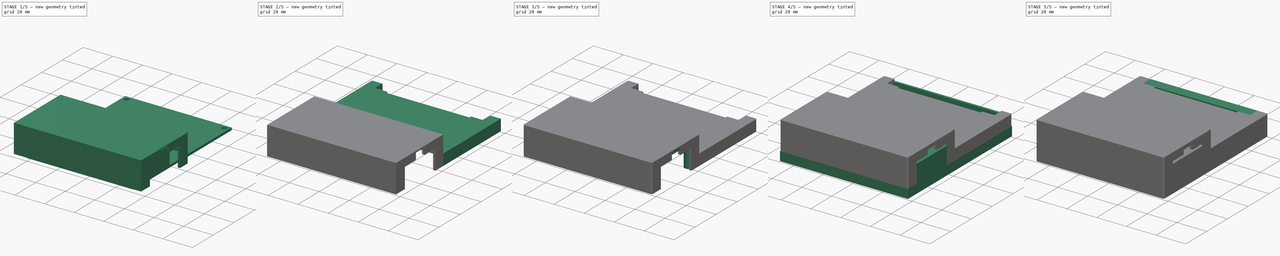
[diagram: build sequence overview — one tinted view per stage of 5, left to right]
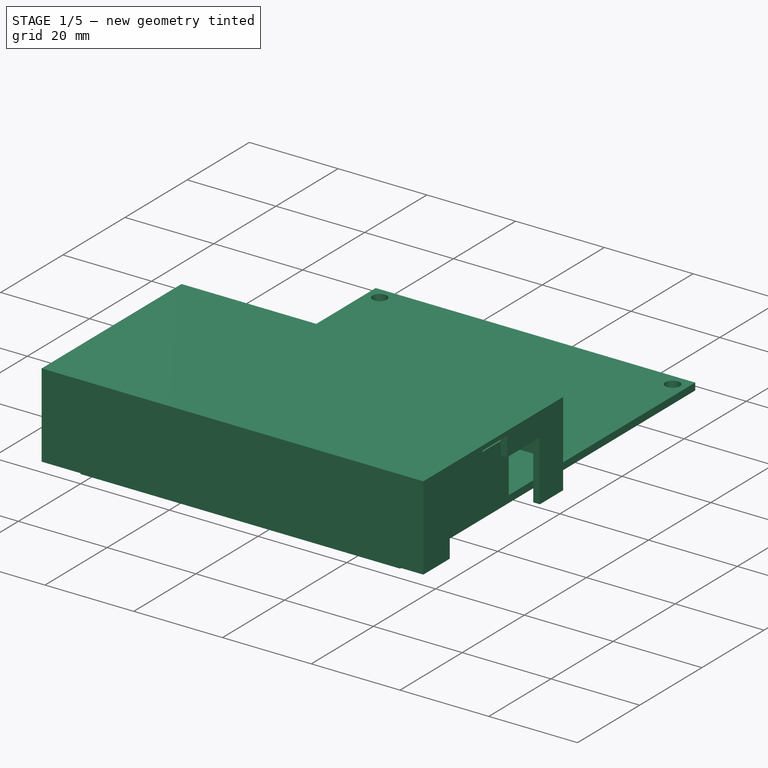
[diagram: stage 1 of 5 — iso view after this stage's code; geometry added in this stage tinted green]
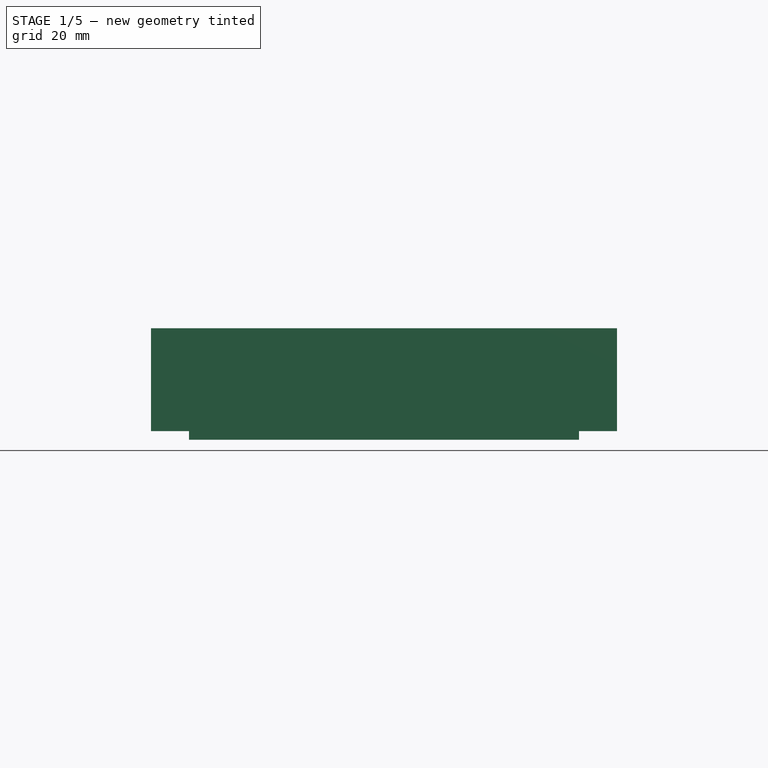
[diagram: stage 1 of 5 — front view after this stage's code; geometry added in this stage tinted green]
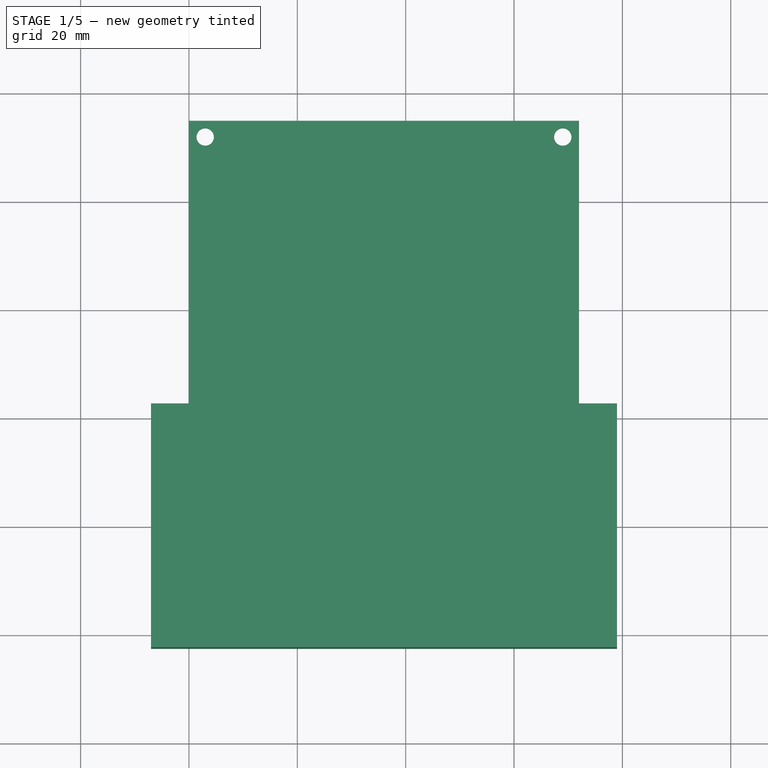
[diagram: stage 1 of 5 — top view after this stage's code; geometry added in this stage tinted green]
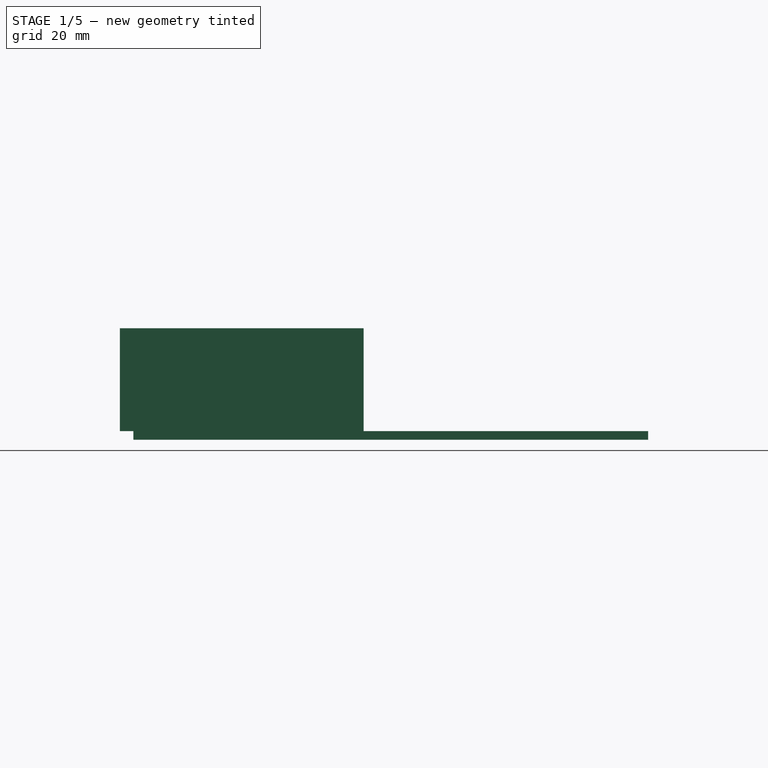
[diagram: stage 1 of 5 — right view after this stage's code; geometry added in this stage tinted green]
FCSTD DOCUMENT  (FreeCAD 0.22R36596 (Git))
Label: Case
License: All rights reserved
LicenseURL: http://en.wikipedia.org/wiki/All_rights_reserved
objects: Sketcher::SketchObject×34, PartDesign::Pad×27, PartDesign::Pocket×7, PartDesign::LinearPattern×4, PartDesign::Body×3, Part::FeaturePython×3, PartDesign::ShapeBinder×2, PartDesign::Fillet×2, Spreadsheet::Sheet×1, PartDesign::Plane×1, App::DocumentObjectGroup×1
note: 119 computed .brp shape members not serialized (recipe doc carries the construction recipe); baked Part::Feature solids carry a one-line shape summary decoded from their .brp

FEATURE [Sketcher::SketchObject] Sketch
  AttachmentSupport = -> [XY_Plane]
  FullyConstrained = true
  MapMode = 5
  expr: Constraints[10] = <<Parameters>>.BoardW
  expr: Constraints[9] = <<Parameters>>.BoardH
  sketch-geometry (4):
    g0: LineSegment StartX=0 StartY=0 StartZ=0 EndX=72 EndY=0 EndZ=0
    g1: LineSegment StartX=72 StartY=0 StartZ=0 EndX=72 EndY=95 EndZ=0
    g2: LineSegment StartX=72 StartY=95 StartZ=0 EndX=0 EndY=95 EndZ=0
    g3: LineSegment StartX=0 StartY=95 StartZ=0 EndX=0 EndY=0 EndZ=0
  constraints (11):
    c: Coincident(g0,g1)
    c: Coincident(g1,g2)
    c: Coincident(g2,g3)
    c: Coincident(g3,g0)
    c: Horizontal(g0)
    c: Horizontal(g2)
    c: Vertical(g1)
    c: Vertical(g3)
    c: Coincident(g0,g-1)
    c: DistanceY(g1,g1) = 95
    c: DistanceX(g2,g2) = 72
FEATURE [PartDesign::Pad] Pad  label="Board"
  Direction = (0,0,1)
  Length = 1.6
  Length2 = 10
  Profile = -> Sketch
  ReferenceAxis = -> Sketch [N_Axis]
  Suppressed = false
  Type = 0
  expr: Length = <<Parameters>>.BoardThickness
FEATURE [Sketcher::SketchObject] Sketch001
  AttachmentSupport = -> [Pad]
  FullyConstrained = true
  MapMode = 5
  Placement = pos=(0,0,1.6) rot=(0,0,1;0rad)
  expr: Constraints[0] = <<Parameters>>.MountingHoleDiameter
  expr: Constraints[1] = <<Parameters>>.MountingHoleDistance
  expr: Constraints[2] = <<Parameters>>.MountingHoleDistance
  expr: Constraints[3] = <<Parameters>>.BoardW - <<Parameters>>.MountingHoleDistance * 2
  expr: Constraints[4] = <<Parameters>>.MountingHoleDistance
  expr: Constraints[5] = <<Parameters>>.MountingHoleDiameter
  expr: Constraints[6] = <<Parameters>>.BoardH - <<Parameters>>.MountingHoleDistance * 2
  expr: Constraints[7] = <<Parameters>>.MountingHoleDistance
  expr: Constraints[8] = <<Parameters>>.MountingHoleDiameter
  expr: Constraints[9] = <<Parameters>>.MountingHoleDiameter
  sketch-geometry (4):
    g0: Circle CenterX=3 CenterY=3 CenterZ=0 NormalX=0 NormalY=0 NormalZ=1 AngleXU=0 Radius=1.6
    g1: Circle CenterX=69 CenterY=3 CenterZ=0 NormalX=0 NormalY=0 NormalZ=1 AngleXU=0 Radius=1.6
    g2: Circle CenterX=69 CenterY=92 CenterZ=0 NormalX=0 NormalY=0 NormalZ=1 AngleXU=0 Radius=1.6
    g3: Circle CenterX=3 CenterY=92 CenterZ=0 NormalX=0 NormalY=0 NormalZ=1 AngleXU=0 Radius=1.6
  constraints (12):
    c: Diameter(g0) = 3.2
    c: DistanceX(g-1,g0) = 3
    c: DistanceY(g-1,g0) = 3
    c: DistanceX(g0,g1) = 66
    c: DistanceY(g-1,g1) = 3
    c: Diameter(g1) = 3.2
    c: DistanceY(g0,g3) = 89
    c: DistanceX(g-1,g3) = 3
    c: Diameter(g3) = 3.2
    c: Diameter(g2) = 3.2
    c: Horizontal(g3,g2)
    c: Vertical(g2,g1)
FEATURE [PartDesign::Pocket] Pocket  label="Hole"
  BaseFeature = -> Pad
  Direction = (0,0,-1)
  Length = 5
  Length2 = 5
  Profile = -> Sketch001
  Suppressed = false
  Type = 1
FEATURE [Sketcher::SketchObject] Sketch005
  AttachmentOffset = pos=(0,0,12) rot=(0,0,1;0rad)
  AttachmentSupport = -> [Pocket]
  FullyConstrained = true
  MapMode = 5
  Placement = pos=(0,0,13.6) rot=(0,0,1;0rad)
  expr: .AttachmentOffset.Base.z = <<Parameters>>.ESP32BottomSpace
  expr: Constraints[10] = <<Parameters>>.ESP32Height
  expr: Constraints[11] = <<Parameters>>.BoardW - (<<Parameters>>.ESP32Height - <<Parameters>>.SpaceToSide)
  expr: Constraints[8] = <<Parameters>>.ESP32LeftSpace
  expr: Constraints[9] = <<Parameters>>.ESP32Width
  sketch-geometry (4):
    g0: LineSegment StartX=27 StartY=6 StartZ=0 EndX=79 EndY=6 EndZ=0
    g1: LineSegment StartX=79 StartY=6 StartZ=0 EndX=79 EndY=35 EndZ=0
    g2: LineSegment StartX=79 StartY=35 StartZ=0 EndX=27 EndY=35 EndZ=0
    g3: LineSegment StartX=27 StartY=35 StartZ=0 EndX=27 EndY=6 EndZ=0
  constraints (12):
    c: Coincident(g0,g1)
    c: Coincident(g1,g2)
    c: Coincident(g2,g3)
    c: Coincident(g3,g0)
    c: Horizontal(g0)
    c: Horizontal(g2)
    c: Vertical(g1)
    c: Vertical(g3)
    c: DistanceY(g-1,g0) = 6
    c: DistanceY(g3,g3) = 29
    c: DistanceX(g2,g2) = 52
    c: DistanceX(g-1,g0) = 27
FEATURE [Sketcher::SketchObject] Sketch006
  AttachmentSupport = -> [Pocket]
  FullyConstrained = true
  MapMode = 5
  Placement = pos=(0,0,1.6) rot=(0,0,1;0rad)
  expr: Constraints[10] = <<Parameters>>.ESP32LeftSpace
  expr: Constraints[11] = <<Parameters>>.ESP32Height - <<Parameters>>.SpaceToSide
  expr: Constraints[8] = <<Parameters>>.ESP32Width
  expr: Constraints[9] = <<Parameters>>.BoardW
  sketch-geometry (4):
    g0: LineSegment StartX=27 StartY=6 StartZ=0 EndX=72 EndY=6 EndZ=0
    g1: LineSegment StartX=72 StartY=6 StartZ=0 EndX=72 EndY=35 EndZ=0
    g2: LineSegment StartX=72 StartY=35 StartZ=0 EndX=27 EndY=35 EndZ=0
    g3: LineSegment StartX=27 StartY=35 StartZ=0 EndX=27 EndY=6 EndZ=0
  constraints (12):
    c: Coincident(g0,g1)
    c: Coincident(g1,g2)
    c: Coincident(g2,g3)
    c: Coincident(g3,g0)
    c: Horizontal(g0)
    c: Horizontal(g2)
    c: Vertical(g1)
    c: Vertical(g3)
    c: DistanceY(g3,g3) = 29
    c: DistanceX(g-1,g0) = 72
    c: DistanceY(g-1,g0) = 6
    c: DistanceX(g2,g2) = 45
FEATURE [PartDesign::Pad] Pad004  label="ESP32Base"
  BaseFeature = -> Pocket
  Direction = (0,0,1)
  Length = 12
  Length2 = 10
  Profile = -> Sketch006
  ReferenceAxis = -> Sketch006 [N_Axis]
  Suppressed = false
  Type = 0
  expr: Length = <<Parameters>>.ESP32BottomSpace
FEATURE [PartDesign::Body] Body  label="CircuitBoard"
  Group = -> [Sketch,Pad,Sketch001,Pocket,Sketch005,Sketch006,Pad004,Pad005,Sketch011,Pad008,Sketch013,Pad010,Sketch014,Pad011]
  Origin = -> Origin
  Tip = -> Pad011
FEATURE [PartDesign::ShapeBinder] ReferencePad011  label="CircuitBoardReference"
  Support = -> [Pad011]
  TraceSupport = false
FEATURE [Sketcher::SketchObject] Sketch015
  AttachmentSupport = -> [ReferencePad011]
  FullyConstrained = true
  MapMode = 5
  Placement = pos=(0,0,1.6) rot=(0,0,1;0rad)
  expr: Constraints[11] = <<Parameters>>.ESP32LeftSpace + <<Parameters>>.CaseThickness + 1
  expr: Constraints[14] = <<Parameters>>.CaseThickness + <<Parameters>>.ESP32LeftSpace
  expr: Constraints[19] = <<Parameters>>.CaseThickness
  expr: Constraints[20] = <<Parameters>>.CaseThickness
  expr: Constraints[25] = <<Parameters>>.CaseThickness
  expr: Constraints[26] = <<Parameters>>.CaseThickness
  expr: Constraints[34] = <<Parameters>>.CaseThickness
  expr: Constraints[35] = 0
  expr: Constraints[5] = <<Parameters>>.CaseThickness + <<Parameters>>.SpaceToTopBottom
  expr: Constraints[6] = <<Parameters>>.SpaceToSide
  expr: Constraints[7] = <<Parameters>>.BoardW + <<Parameters>>.SpaceToSide
  expr: Constraints[8] = <<Parameters>>.ESP32Width + <<Parameters>>.ESP32LeftSpace * 2 + <<Parameters>>.CaseThickness
  sketch-geometry (12):
    g0: LineSegment StartX=-7 StartY=42.5 StartZ=0 EndX=79 EndY=42.5 EndZ=0
    g1: LineSegment StartX=-7 StartY=42.5 StartZ=0 EndX=-7 EndY=-2.5 EndZ=0
    g2: LineSegment StartX=-7 StartY=-2.5 StartZ=0 EndX=79 EndY=-2.5 EndZ=0
    g3: LineSegment StartX=79 StartY=-2.5 StartZ=0 EndX=79 EndY=6 EndZ=0
    g4: LineSegment StartX=79 StartY=42.5 StartZ=0 EndX=79 EndY=35 EndZ=0
    g5: LineSegment StartX=79 StartY=6 StartZ=0 EndX=77.5 EndY=6 EndZ=0
    g6: LineSegment StartX=77.5 StartY=6 StartZ=0 EndX=77.5 EndY=-1 EndZ=0
    g7: LineSegment StartX=77.5 StartY=-1 StartZ=0 EndX=-5.5 EndY=-1 EndZ=0
    g8: LineSegment StartX=-5.5 StartY=-1 StartZ=0 EndX=-5.5 EndY=41 EndZ=0
    g9: LineSegment StartX=-5.5 StartY=41 StartZ=0 EndX=77.5 EndY=41 EndZ=0
    g10: LineSegment StartX=77.5 StartY=41 StartZ=0 EndX=77.5 EndY=35 EndZ=0
    g11: LineSegment StartX=77.5 StartY=35 StartZ=0 EndX=79 EndY=35 EndZ=0
  constraints (36):
    c: Horizontal(g0)
    c: Coincident(g1,g0)
    c: Vertical(g1)
    c: Coincident(g2,g1)
    c: Horizontal(g2)
    c: DistanceY(g1,g-1) = 2.5
    c: DistanceX(g1,g-1) = 7
    c: DistanceX(g-1,g2) = 79
    c: DistanceY(g0) = 42.5
    c: Coincident(g3,g2)
    c: Vertical(g3)
    c: DistanceY(g3,g3) = 8.5
    c: Coincident(g4,g0)
    c: Vertical(g4)
    c: DistanceY(g4,g4) = 7.5
    c: Coincident(g5,g3)
    c: Horizontal(g5)
    c: Coincident(g6,g5)
    c: Vertical(g6)
    c: DistanceX(g5,g5) = 1.5
    c: DistanceY(g2,g6) = 1.5
    c: Coincident(g7,g6)
    c: Horizontal(g7)
    c: Coincident(g8,g7)
    c: Vertical(g8)
    c: DistanceX(g1,g7) = 1.5
    c: DistanceY(g8,g0) = 1.5
    c: Coincident(g9,g8)
    c: Horizontal(g9)
    c: Coincident(g10,g9)
    c: Vertical(g10)
    c: Coincident(g11,g10)
    c: Coincident(g11,g4)
    c: Horizontal(g11)
    c: DistanceX(g9,g4) = 1.5
    c: DistanceX(g3,g4) = 0
FEATURE [PartDesign::Pad] Pad012  label="Wall001"
  Direction = (0,0,1)
  Length = 18
  Length2 = 10
  Profile = -> Sketch015
  ReferenceAxis = -> Sketch015 [N_Axis]
  Suppressed = false
  Type = 0
  expr: Length = <<Parameters>>.HigherPartHeight
FEATURE [PartDesign::ShapeBinder] ReferencePad011001  label="ESP32Reference"
  Support = -> [Pad011]
  TraceSupport = false
FEATURE [Sketcher::SketchObject] Sketch016
  AttachmentSupport = -> [ReferencePad011001]
  FullyConstrained = true
  MapMode = 5
  Placement = pos=(0,0,15.2) rot=(0,0,1;0rad)
  expr: Constraints[16] = <<Parameters>>.CaseThickness
  expr: Constraints[17] = <<Parameters>>.CaseThickness
  expr: Constraints[18] = <<Parameters>>.ESP32LeftSpace
  expr: Constraints[19] = <<Parameters>>.BoardW + <<Parameters>>.SpaceToSide - <<Parameters>>.CaseThickness
  expr: Constraints[20] = (<<Parameters>>.ESP32Width - <<Parameters>>.USBJackWidth) / 2
  expr: Constraints[21] = (<<Parameters>>.ESP32Width - <<Parameters>>.USBJackWidth) / 2
  expr: Constraints[23] = <<Parameters>>.USBJackWidth
  sketch-geometry (8):
    g0: LineSegment StartX=79 StartY=16.5 StartZ=0 EndX=77.5 EndY=16.5 EndZ=0
    g1: LineSegment StartX=77.5 StartY=16.5 StartZ=0 EndX=77.5 EndY=6 EndZ=0
    g2: LineSegment StartX=77.5 StartY=6 StartZ=0 EndX=79 EndY=6 EndZ=0
    g3: LineSegment StartX=79 StartY=6 StartZ=0 EndX=79 EndY=16.5 EndZ=0
    g4: LineSegment StartX=79 StartY=24.5 StartZ=0 EndX=77.5 EndY=24.5 EndZ=0
    g5: LineSegment StartX=77.5 StartY=24.5 StartZ=0 EndX=77.5 EndY=35 EndZ=0
    g6: LineSegment StartX=77.5 StartY=35 StartZ=0 EndX=79 EndY=35 EndZ=0
    g7: LineSegment StartX=79 StartY=35 StartZ=0 EndX=79 EndY=24.5 EndZ=0
  constraints (24):
    c: Coincident(g0,g1)
    c: Coincident(g1,g2)
    c: Coincident(g2,g3)
    c: Coincident(g3,g0)
    c: Horizontal(g0)
    c: Horizontal(g2)
    c: Vertical(g1)
    c: Vertical(g3)
    c: Coincident(g4,g5)
    c: Coincident(g5,g6)
    c: Coincident(g6,g7)
    c: Coincident(g7,g4)
    c: Horizontal(g4)
    c: Horizontal(g6)
    c: Vertical(g5)
    c: Vertical(g7)
    c: DistanceX(g2,g2) = 1.5
    c: DistanceX(g4,g4) = 1.5
    c: DistanceY(g-1,g1) = 6
    c: DistanceX(g-1,g1) = 77.5
    c: DistanceY(g5,g5) = 10.5
    c: DistanceY(g1,g1) = 10.5
    c: DistanceX(g4,g0) = 0
    c: DistanceY(g0,g4) = 8
FEATURE [PartDesign::Pad] Pad013  label="WallForUSBJack"
  AlongSketchNormal = false
  BaseFeature = -> Pad012
  Direction = (0,0,1)
  Length = 4.4
  Length2 = 10
  Profile = -> Sketch016
  ReferenceAxis = -> Sketch016 [N_Axis]
  Suppressed = false
  Type = 0
  expr: Length = <<Parameters>>.HigherPartHeight - <<Parameters>>.ESP32BottomSpace - <<Parameters>>.BoardThickness
FEATURE [Sketcher::SketchObject] Sketch017
  AttachmentSupport = -> [Pad013]
  ExternalGeometry = -> [Pad013]
  FullyConstrained = true
  MapMode = 5
  Placement = pos=(0,0,19.6) rot=(0,0,1;0rad)
  sketch-geometry (4):
    g0: LineSegment StartX=-7 StartY=42.5 StartZ=0 EndX=79 EndY=42.5 EndZ=0
    g1: LineSegment StartX=79 StartY=42.5 StartZ=0 EndX=79 EndY=-2.5 EndZ=0
    g2: LineSegment StartX=79 StartY=-2.5 StartZ=0 EndX=-7 EndY=-2.5 EndZ=0
    g3: LineSegment StartX=-7 StartY=-2.5 StartZ=0 EndX=-7 EndY=42.5 EndZ=0
  constraints (10):
    c: Coincident(g0,g1)
    c: Coincident(g1,g2)
    c: Coincident(g2,g3)
    c: Coincident(g3,g0)
    c: Horizontal(g0)
    c: Horizontal(g2)
    c: Vertical(g1)
    c: Vertical(g3)
    c: Coincident(g0,g-3)
    c: Coincident(g1,g-4)
FEATURE [PartDesign::Pad] Pad014  label="Top"
  BaseFeature = -> Pad013
  Direction = (0,0,1)
  Length = 1
  Length2 = 10
  Profile = -> Sketch017
  ReferenceAxis = -> Sketch017 [N_Axis]
  Suppressed = false
  Type = 0
  expr: Length = <<Parameters>>.CaseThickness - 0.5
FEATURE [Sketcher::SketchObject] Sketch018
  AttachmentSupport = -> [ReferencePad011]
  ExternalGeometry = -> [Pad014]
  FullyConstrained = true
  MapMode = 5
  Placement = pos=(0,0,1.6) rot=(0,0,1;0rad)
  expr: Constraints[11] = <<Parameters>>.CaseThickness
  expr: Constraints[8] = <<Parameters>>.BoardW + <<Parameters>>.SpaceToSide * 2 - <<Parameters>>.CaseThickness * 2
  expr: Constraints[9] = <<Parameters>>.CaseThickness
  sketch-geometry (4):
    g0: LineSegment StartX=77.5 StartY=42.5 StartZ=0 EndX=-5.5 EndY=42.5 EndZ=0
    g1: LineSegment StartX=-5.5 StartY=42.5 StartZ=0 EndX=-5.5 EndY=41 EndZ=0
    g2: LineSegment StartX=-5.5 StartY=41 StartZ=0 EndX=77.5 EndY=41 EndZ=0
    g3: LineSegment StartX=77.5 StartY=41 StartZ=0 EndX=77.5 EndY=42.5 EndZ=0
  constraints (12):
    c: Coincident(g0,g1)
    c: Coincident(g1,g2)
    c: Coincident(g2,g3)
    c: Coincident(g3,g0)
    c: Horizontal(g0)
    c: Horizontal(g2)
    c: Vertical(g1)
    c: Vertical(g3)
    c: DistanceX(g2,g2) = 83
    c: DistanceY(g3,g3) = 1.5
    c: DistanceY(g0,g-3) = 0
    c: DistanceX(g0,g-3) = 1.5
FEATURE [PartDesign::Pocket] Pocket003  label="CutForLowerParts"
  BaseFeature = -> Pad014
  Direction = (0,0,-1)
  Length = 6.5
  Length2 = 5
  Profile = -> Sketch018
  Reversed = true
  Suppressed = false
  Type = 0
  expr: Length = <<Parameters>>.LowerPartHeight
FEATURE [Sketcher::SketchObject] Sketch022
  AttachmentSupport = -> [Pad017]
  ExternalGeometry = -> [Pad017]
  FullyConstrained = true
  MapMode = 5
  Placement = pos=(0,0,-1.697e-13) rot=(0,0,-1;1.5708rad)
  expr: Constraints[2] = <<Parameters>>.MountingHoleDiameter - <<Parameters>>.PillarTolerance
  expr: Constraints[3] = <<Parameters>>.MountingHoleDiameter - 0.4
  sketch-geometry (2):
    g0: Circle CenterX=-92 CenterY=69 CenterZ=0 NormalX=0 NormalY=0 NormalZ=1 AngleXU=0 Radius=1.4
    g1: Circle CenterX=-92 CenterY=3 CenterZ=0 NormalX=0 NormalY=0 NormalZ=1 AngleXU=0 Radius=1.37
  constraints (4):
    c: Coincident(g0,g-3)
    c: Coincident(g1,g-4)
    c: Diameter(g1) = 2.74
    c: Diameter(g0) = 2.8
FEATURE [Sketcher::SketchObject] Sketch024
  AttachmentSupport = -> [Pocket003]
  FullyConstrained = true
  MapMode = 5
  Placement = pos=(0,0,19.6) rot=(1,0,0;3.14159rad)
  expr: Constraints[0] = <<Parameters>>.MountingHoleDistance
  expr: Constraints[1] = <<Parameters>>.MountingHoleDistance
  expr: Constraints[3] = <<Parameters>>.BoardW - <<Parameters>>.MountingHoleDistance * 2
  expr: Constraints[4] = <<Parameters>>.MountingHoleDiameter + 2
  expr: Constraints[5] = <<Parameters>>.MountingHoleDiameter + 2
  sketch-geometry (2):
    g0: Circle CenterX=3 CenterY=-3 CenterZ=0 NormalX=0 NormalY=0 NormalZ=1 AngleXU=0 Radius=2.6
    g1: Circle CenterX=69 CenterY=-3 CenterZ=0 NormalX=0 NormalY=0 NormalZ=1 AngleXU=0 Radius=2.6
  constraints (6):
    c: DistanceX(g-1,g0) = 3
    c: DistanceY(g0,g-1) = 3
    c: Horizontal(g0,g1)
    c: DistanceX(g0,g1) = 66
    c: Diameter(g1) = 5.2
    c: Diameter(g0) = 5.2
FEATURE [PartDesign::Pad] Pad019  label="MountingPillarLong"
  BaseFeature = -> Pocket003
  Direction = (0,0,-1)
  Length = 13
  Length2 = 10
  Profile = -> Sketch024
  ReferenceAxis = -> Sketch024 [N_Axis]
  Suppressed = false
  Type = 0
  expr: Length = <<Parameters>>.TopCasePillar
FEATURE [Sketcher::SketchObject] Sketch025
  AttachmentSupport = -> [Pad019]
  ExternalGeometry = -> [Pad019]
  FullyConstrained = true
  MapMode = 5
  Placement = pos=(0,0,6.6) rot=(1,0,0;3.14159rad)
  expr: Constraints[2] = <<Parameters>>.MountingHoleDiameter
  expr: Constraints[3] = <<Parameters>>.MountingHoleDiameter
  sketch-geometry (2):
    g0: Circle CenterX=3 CenterY=-3 CenterZ=0 NormalX=0 NormalY=0 NormalZ=1 AngleXU=0 Radius=1.6
    g1: Circle CenterX=69 CenterY=-3 CenterZ=0 NormalX=0 NormalY=0 NormalZ=1 AngleXU=0 Radius=1.6
  constraints (4):
    c: Coincident(g0,g-3)
    c: Coincident(g1,g-4)
    c: Diameter(g0) = 3.2
    c: Diameter(g1) = 3.2
FEATURE [PartDesign::Pocket] Pocket005  label="MountingHoleLong"
  BaseFeature = -> Pad019
  Direction = (0,0,1)
  Length = 13
  Length2 = 5
  Profile = -> Sketch025
  Suppressed = false
  Type = 0
  expr: Length = <<Parameters>>.TopCasePillar
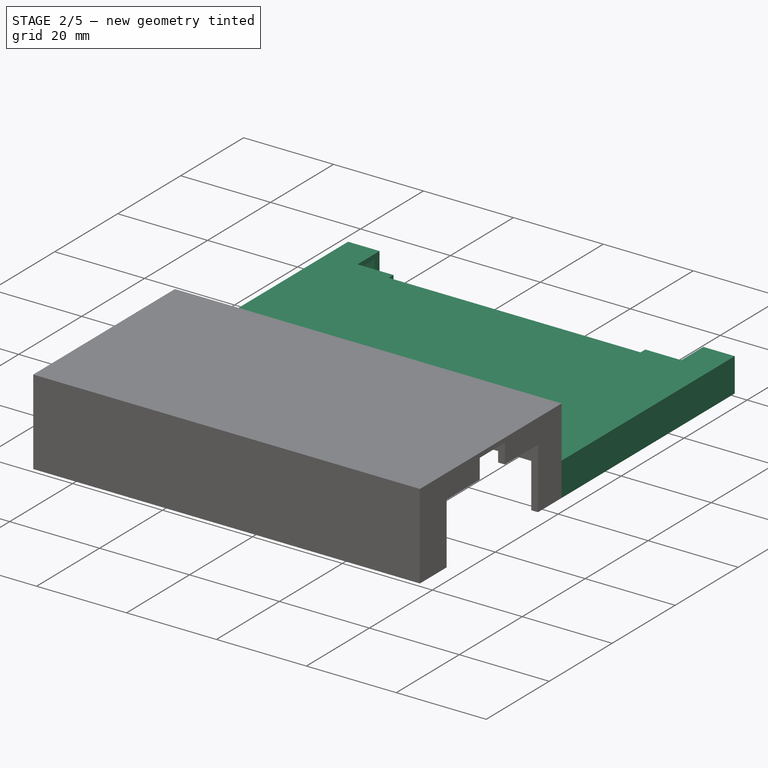
[diagram: stage 2 of 5 — iso view after this stage's code; geometry added in this stage tinted green]
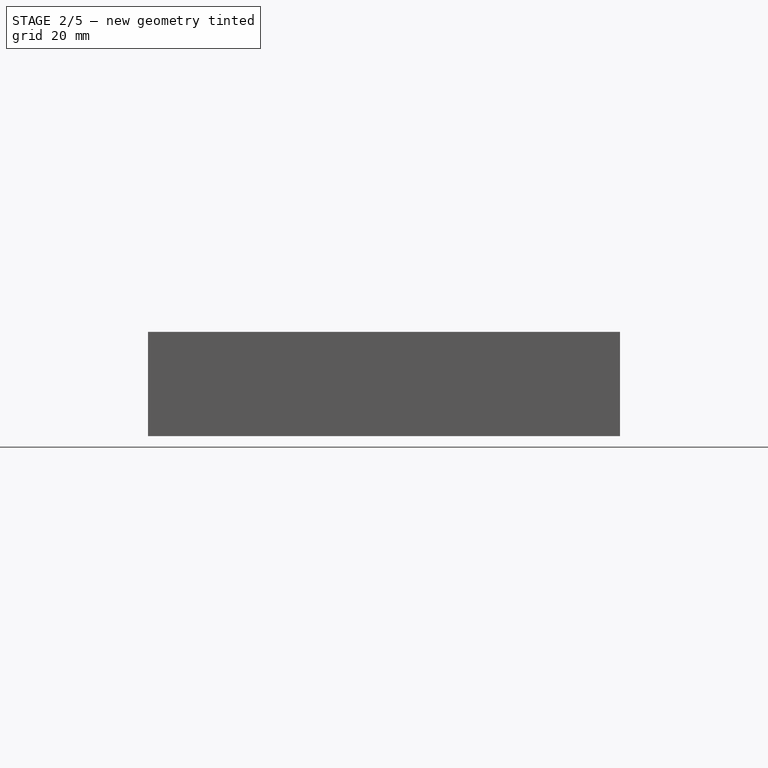
[diagram: stage 2 of 5 — front view after this stage's code; geometry added in this stage tinted green]
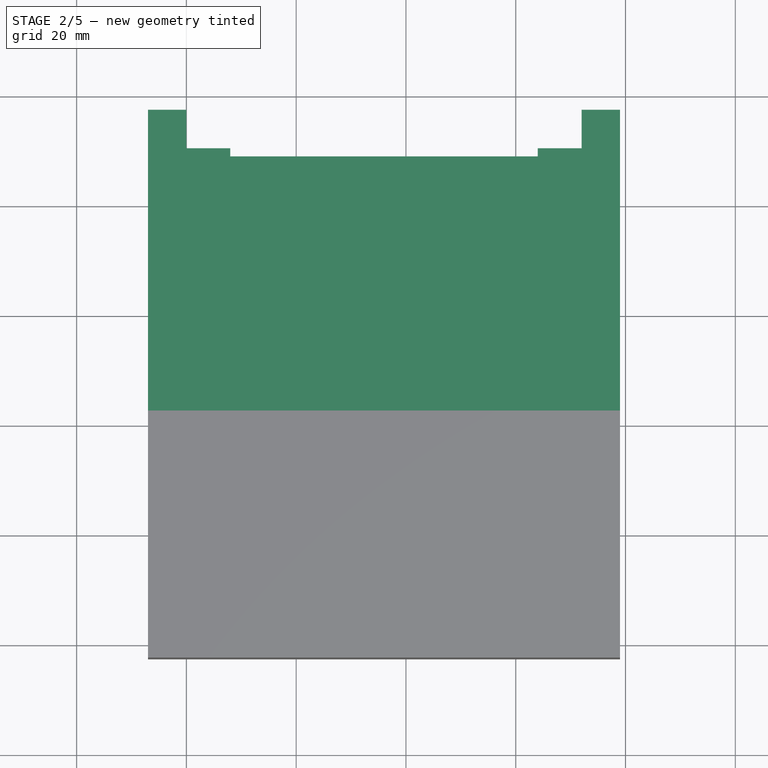
[diagram: stage 2 of 5 — top view after this stage's code; geometry added in this stage tinted green]
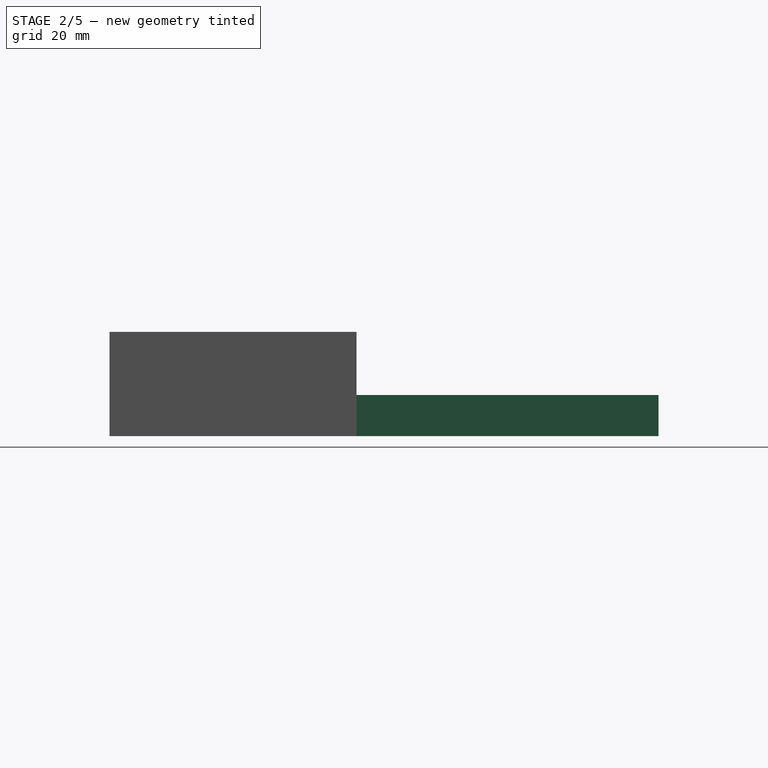
[diagram: stage 2 of 5 — right view after this stage's code; geometry added in this stage tinted green]
FEATURE [PartDesign::Pad] Pad005  label="ESP32Board"
  BaseFeature = -> Pad004
  Direction = (0,0,1)
  Length = 1.6
  Length2 = 10
  Profile = -> Sketch005
  ReferenceAxis = -> Sketch005 [N_Axis]
  Suppressed = false
  Type = 0
  expr: Length = <<Parameters>>.BoardThickness
FEATURE [Sketcher::SketchObject] Sketch011
  AttachmentSupport = -> [Pad005]
  FullyConstrained = true
  MapMode = 5
  Placement = pos=(0,0,15.2) rot=(0,0,1;0rad)
  expr: Constraints[10] = <<Parameters>>.BoardW + <<Parameters>>.SpaceToSide
  expr: Constraints[11] = <<Parameters>>.ESP32LeftSpace + (<<Parameters>>.ESP32Width - <<Parameters>>.USBJackWidth) / 2
  expr: Constraints[8] = <<Parameters>>.USBJackWidth
  expr: Constraints[9] = <<Parameters>>.USBJackWidth
  sketch-geometry (4):
    g0: LineSegment StartX=71 StartY=24.5 StartZ=0 EndX=79 EndY=24.5 EndZ=0
    g1: LineSegment StartX=79 StartY=24.5 StartZ=0 EndX=79 EndY=16.5 EndZ=0
    g2: LineSegment StartX=79 StartY=16.5 StartZ=0 EndX=71 EndY=16.5 EndZ=0
    g3: LineSegment StartX=71 StartY=16.5 StartZ=0 EndX=71 EndY=24.5 EndZ=0
  constraints (12):
    c: Coincident(g0,g1)
    c: Coincident(g1,g2)
    c: Coincident(g2,g3)
    c: Coincident(g3,g0)
    c: Horizontal(g0)
    c: Horizontal(g2)
    c: Vertical(g1)
    c: Vertical(g3)
    c: DistanceY(g1,g1) = 8
    c: DistanceX(g2,g2) = 8
    c: DistanceX(g-1,g1) = 79
    c: DistanceY(g-1,g1) = 16.5
FEATURE [PartDesign::Pad] Pad008  label="USBJack"
  BaseFeature = -> Pad005
  Direction = (0,0,1)
  Length = 3
  Length2 = 10
  Profile = -> Sketch011
  ReferenceAxis = -> Sketch011 [N_Axis]
  Suppressed = false
  Type = 0
  expr: Length = <<Parameters>>.USBJackHeight
FEATURE [Sketcher::SketchObject] Sketch013
  AttachmentSupport = -> [Pad008]
  FullyConstrained = true
  MapMode = 5
  Placement = pos=(0,0,1.6) rot=(0,0,1;0rad)
  expr: Constraints[10] = <<Parameters>>.ScreenPinSideSpace
  expr: Constraints[11] = <<Parameters>>.BoardW - <<Parameters>>.ScreenPinSideSpace * 2
  expr: Constraints[8] = <<Parameters>>.ScreenPinThickness
  expr: Constraints[9] = <<Parameters>>.BoardH - <<Parameters>>.ScreenFrontSpace - <<Parameters>>.ScreenPinThickness
  sketch-geometry (4):
    g0: LineSegment StartX=8 StartY=90.5 StartZ=0 EndX=64 EndY=90.5 EndZ=0
    g1: LineSegment StartX=64 StartY=90.5 StartZ=0 EndX=64 EndY=89 EndZ=0
    g2: LineSegment StartX=64 StartY=89 StartZ=0 EndX=8 EndY=89 EndZ=0
    g3: LineSegment StartX=8 StartY=89 StartZ=0 EndX=8 EndY=90.5 EndZ=0
  constraints (12):
    c: Coincident(g0,g1)
    c: Coincident(g1,g2)
    c: Coincident(g2,g3)
    c: Coincident(g3,g0)
    c: Horizontal(g0)
    c: Horizontal(g2)
    c: Vertical(g1)
    c: Vertical(g3)
    c: DistanceY(g1,g1) = 1.5
    c: DistanceY(g-1,g2) = 89
    c: DistanceX(g-1,g2) = 8
    c: DistanceX(g2,g2) = 56
FEATURE [PartDesign::Pad] Pad010  label="ScreenPin"
  BaseFeature = -> Pad008
  Direction = (0,0,1)
  Length = 10
  Length2 = 10
  Profile = -> Sketch013
  ReferenceAxis = -> Sketch013 [N_Axis]
  Suppressed = false
  Type = 0
FEATURE [Sketcher::SketchObject] Sketch014
  AttachmentSupport = -> [Pad010]
  FullyConstrained = true
  MapMode = 5
  Placement = pos=(0,0,1.6) rot=(0,0,1;0rad)
  expr: Constraints[10] = 55
  sketch-geometry (4):
    g0: LineSegment StartX=10 StartY=80 StartZ=0 EndX=60 EndY=80 EndZ=0
    g1: LineSegment StartX=60 StartY=80 StartZ=0 EndX=60 EndY=55 EndZ=0
    g2: LineSegment StartX=60 StartY=55 StartZ=0 EndX=10 EndY=55 EndZ=0
    g3: LineSegment StartX=10 StartY=55 StartZ=0 EndX=10 EndY=80 EndZ=0
  constraints (12):
    c: Coincident(g0,g1)
    c: Coincident(g1,g2)
    c: Coincident(g2,g3)
    c: Coincident(g3,g0)
    c: Horizontal(g0)
    c: Horizontal(g2)
    c: Vertical(g1)
    c: Vertical(g3)
    c: DistanceX(g0,g0) = 50
    c: DistanceY(g1,g1) = 25
    c: DistanceY(g-1,g2) = 55
    c: DistanceX(g-1,g2) = 10
FEATURE [PartDesign::Pad] Pad011  label="OtherParts"
  BaseFeature = -> Pad010
  Direction = (0,0,1)
  Length = 5.5
  Length2 = 10
  Profile = -> Sketch014
  ReferenceAxis = -> Sketch014 [N_Axis]
  Suppressed = false
  Type = 0
FEATURE [Sketcher::SketchObject] Sketch026
  AttachmentSupport = -> [ReferencePad011]
  ExternalGeometry = -> [ReferencePad011,Pocket005]
  FullyConstrained = true
  MapMode = 5
  Placement = pos=(0,0,1.6) rot=(0,0,1;0rad)
  expr: Constraints[15] = <<Parameters>>.CaseThickness
  expr: Constraints[6] = <<Parameters>>.CaseThickness
  expr: Constraints[7] = <<Parameters>>.CaseThickness + <<Parameters>>.SpaceToTopBottom
  expr: Constraints[8] = <<Parameters>>.CaseThickness
  sketch-geometry (12):
    g0: LineSegment StartX=79 StartY=97.5 StartZ=0 EndX=79 EndY=42.5 EndZ=0
    g1: LineSegment StartX=79 StartY=42.5 StartZ=0 EndX=77.5 EndY=42.5 EndZ=0
    g2: LineSegment StartX=77.5 StartY=42.5 StartZ=0 EndX=77.5 EndY=96 EndZ=0
    g3: LineSegment StartX=-7 StartY=42.5 StartZ=0 EndX=-5.5 EndY=42.5 EndZ=0
    g4: LineSegment StartX=-5.5 StartY=42.5 StartZ=0 EndX=-5.5 EndY=96 EndZ=0
    g5: LineSegment StartX=-7 StartY=97.5 StartZ=0 EndX=-7 EndY=42.5 EndZ=0
    g6: LineSegment StartX=-7 StartY=97.5 StartZ=0 EndX=0 EndY=97.5 EndZ=0
    g7: LineSegment StartX=0 StartY=97.5 StartZ=0 EndX=0 EndY=96 EndZ=0
    g8: LineSegment StartX=0 StartY=96 StartZ=0 EndX=-5.5 EndY=96 EndZ=0
    g9: LineSegment StartX=77.5 StartY=96 StartZ=0 EndX=72 EndY=96 EndZ=0
    g10: LineSegment StartX=79 StartY=97.5 StartZ=0 EndX=72 EndY=97.5 EndZ=0
    g11: LineSegment StartX=72 StartY=97.5 StartZ=0 EndX=72 EndY=96 EndZ=0
  constraints (34):
    c: Coincident(g0,g1)
    c: Coincident(g1,g2)
    c: Horizontal(g1)
    c: Vertical(g0)
    c: Vertical(g2)
    c: Coincident(g0,g-5)
    c: DistanceX(g2,g0) = 1.5
    c: DistanceY(g-4,g0) = 2.5
    c: DistanceY(g2,g0) = 1.5
    c: Coincident(g3,g4)
    c: Coincident(g5,g3)
    c: Horizontal(g3)
    c: Vertical(g4)
    c: Vertical(g5)
    c: Coincident(g3,g-5)
    c: DistanceX(g5,g4) = 1.5
    c: Horizontal(g4,g2)
    c: Coincident(g6,g5)
    c: Horizontal(g6)
    c: Coincident(g7,g6)
    c: Vertical(g7)
    c: Coincident(g8,g7)
    c: Coincident(g8,g4)
    c: Horizontal(g8)
    c: Coincident(g9,g2)
    c: Horizontal(g9)
    c: Coincident(g10,g0)
    c: Horizontal(g10)
    c: Coincident(g11,g10)
    c: Coincident(g11,g9)
    c: Vertical(g11)
    c: Vertical(g9,g-4)
    c: Vertical(g7,g-3)
    c: Horizontal(g6,g10)
FEATURE [PartDesign::Pad] Pad020  label="Wall002"
  BaseFeature = -> Pocket005
  Direction = (0,0,1)
  Length = 6.5
  Length2 = 10
  Profile = -> Sketch026
  ReferenceAxis = -> Sketch026 [N_Axis]
  Suppressed = false
  Type = 0
  expr: Length = <<Parameters>>.LowerPartHeight
FEATURE [Sketcher::SketchObject] Sketch030
  AttachmentSupport = -> [Pad020]
  ExternalGeometry = -> [Pad020]
  FullyConstrained = true
  MapMode = 5
  Placement = pos=(0,0,8.1) rot=(0,0,1;0rad)
  expr: Constraints[14] = <<Parameters>>.SpaceToTopBottom + <<Parameters>>.CaseThickness + <<Parameters>>.ScreenFrontSpace
  expr: Constraints[18] = Spreadsheet.ScreenPinSideSpace
  expr: Constraints[21] = <<Parameters>>.ScreenPinSideSpace
  expr: Constraints[28] = <<Parameters>>.ScreenPinThickness
  sketch-geometry (12):
    g0: LineSegment StartX=0 StartY=90.5 StartZ=0 EndX=0 EndY=97.5 EndZ=0
    g1: LineSegment StartX=0 StartY=97.5 StartZ=0 EndX=-7 EndY=97.5 EndZ=0
    g2: LineSegment StartX=-7 StartY=97.5 StartZ=0 EndX=-7 EndY=42.5 EndZ=0
    g3: LineSegment StartX=-7 StartY=42.5 StartZ=0 EndX=79 EndY=42.5 EndZ=0
    g4: LineSegment StartX=79 StartY=42.5 StartZ=0 EndX=79 EndY=97.5 EndZ=0
    g5: LineSegment StartX=79 StartY=97.5 StartZ=0 EndX=72 EndY=97.5 EndZ=0
    g6: LineSegment StartX=72 StartY=97.5 StartZ=0 EndX=72 EndY=90.5 EndZ=0
    g7: LineSegment StartX=0 StartY=90.5 StartZ=0 EndX=8 EndY=90.5 EndZ=0
    g8: LineSegment StartX=72 StartY=90.5 StartZ=0 EndX=64 EndY=90.5 EndZ=0
    g9: LineSegment StartX=8 StartY=90.5 StartZ=0 EndX=8 EndY=89 EndZ=0
    g10: LineSegment StartX=8 StartY=89 StartZ=0 EndX=64 EndY=89 EndZ=0
    g11: LineSegment StartX=64 StartY=89 StartZ=0 EndX=64 EndY=90.5 EndZ=0
  constraints (30):
    c: PointOnObject(g0,g-2)
    c: Coincident(g0,g-3)
    c: Coincident(g1,g0)
    c: Coincident(g1,g-4)
    c: Coincident(g2,g1)
    c: Coincident(g2,g-4)
    c: Coincident(g3,g2)
    c: Coincident(g3,g-6)
    c: Coincident(g4,g3)
    c: Coincident(g4,g-6)
    c: Coincident(g5,g4)
    c: Coincident(g5,g-5)
    c: Coincident(g6,g5)
    c: Vertical(g6)
    c: DistanceY(g0,g0) = 7
    c: Horizontal(g6,g0)
    c: Coincident(g7,g0)
    c: Horizontal(g7)
    c: DistanceX(g7,g7) = 8
    c: Coincident(g8,g6)
    c: Horizontal(g8)
    c: DistanceX(g8,g8) = 8
    c: Coincident(g9,g7)
    c: Coincident(g10,g9)
    c: Horizontal(g10)
    c: Coincident(g11,g10)
    c: Coincident(g11,g8)
    c: Vertical(g9)
    c: DistanceY(g9,g9) = 1.5
    c: Vertical(g11)
FEATURE [PartDesign::Pad] Pad025  label="Top001"
  BaseFeature = -> Pad020
  Direction = (0,0,1)
  Length = 1
  Length2 = 10
  Profile = -> Sketch030
  ReferenceAxis = -> Sketch030 [N_Axis]
  Suppressed = false
  Type = 0
  expr: Length = <<Parameters>>.CaseThickness - 0.5
FEATURE [Sketcher::SketchObject] Sketch032
  AttachmentSupport = -> [Pad025]
  ExternalGeometry = -> [Pad025]
  FullyConstrained = true
  MapMode = 5
  Placement = pos=(0,0,8.1) rot=(1,0,0;3.14159rad)
  expr: Constraints[0] = <<Parameters>>.MountingHoleDiameter + 2
  expr: Constraints[1] = <<Parameters>>.MountingHoleDiameter + 2
  expr: Constraints[2] = Spreadsheet.FrontPillarSideSpace
  expr: Constraints[3] = Spreadsheet.FrontPillarFrontSpace
  expr: Constraints[4] = Spreadsheet.FrontPillarFrontSpace
  expr: Constraints[5] = Spreadsheet.FrontPillarSideSpace
  sketch-geometry (2):
    g0: Circle CenterX=-3 CenterY=-88 CenterZ=0 NormalX=0 NormalY=0 NormalZ=1 AngleXU=0 Radius=2.6
    g1: Circle CenterX=75 CenterY=-88 CenterZ=0 NormalX=0 NormalY=0 NormalZ=1 AngleXU=0 Radius=2.6
  constraints (6):
    c: Diameter(g0) = 5.2
    c: Diameter(g1) = 5.2
    c: DistanceX(g-4,g0) = 2.5
    c: DistanceY(g-4,g0) = 8
    c: DistanceY(g-6,g1) = 8
    c: DistanceX(g1,g-6) = 2.5
FEATURE [PartDesign::Pad] Pad027  label="FrontMountingPillar"
  BaseFeature = -> Pad025
  Direction = (0,0,-1)
  Length = 6.5
  Length2 = 10
  Profile = -> Sketch032
  ReferenceAxis = -> Sketch032 [N_Axis]
  Suppressed = false
  Type = 0
  expr: Length = <<Parameters>>.LowerPartHeight
FEATURE [Sketcher::SketchObject] Sketch033
  AttachmentSupport = -> [Pad027]
  ExternalGeometry = -> [Pad027]
  FullyConstrained = true
  MapMode = 5
  Placement = pos=(0,0,1.6) rot=(1,0,0;3.14159rad)
  expr: Constraints[2] = <<Parameters>>.MountingHoleDiameter
  expr: Constraints[3] = <<Parameters>>.MountingHoleDiameter
  sketch-geometry (2):
    g0: Circle CenterX=-3 CenterY=-88 CenterZ=0 NormalX=0 NormalY=0 NormalZ=1 AngleXU=0 Radius=1.6
    g1: Circle CenterX=75 CenterY=-88 CenterZ=0 NormalX=0 NormalY=0 NormalZ=1 AngleXU=0 Radius=1.6
  constraints (4):
    c: Coincident(g0,g-3)
    c: Coincident(g1,g-4)
    c: Diameter(g0) = 3.2
    c: Diameter(g1) = 3.2
FEATURE [PartDesign::Pocket] Pocket006  label="FrontMountingHole"
  BaseFeature = -> Pad027
  Direction = (0,0,1)
  Length = 6.5
  Length2 = 5
  Profile = -> Sketch033
  Suppressed = false
  Type = 0
  expr: Length = <<Parameters>>.LowerPartHeight
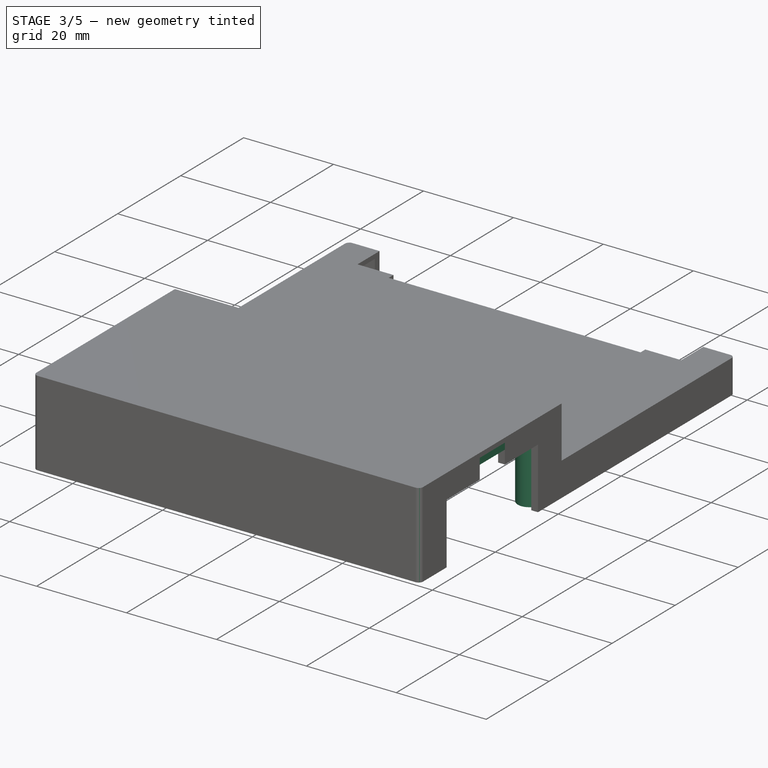
[diagram: stage 3 of 5 — iso view after this stage's code; geometry added in this stage tinted green]
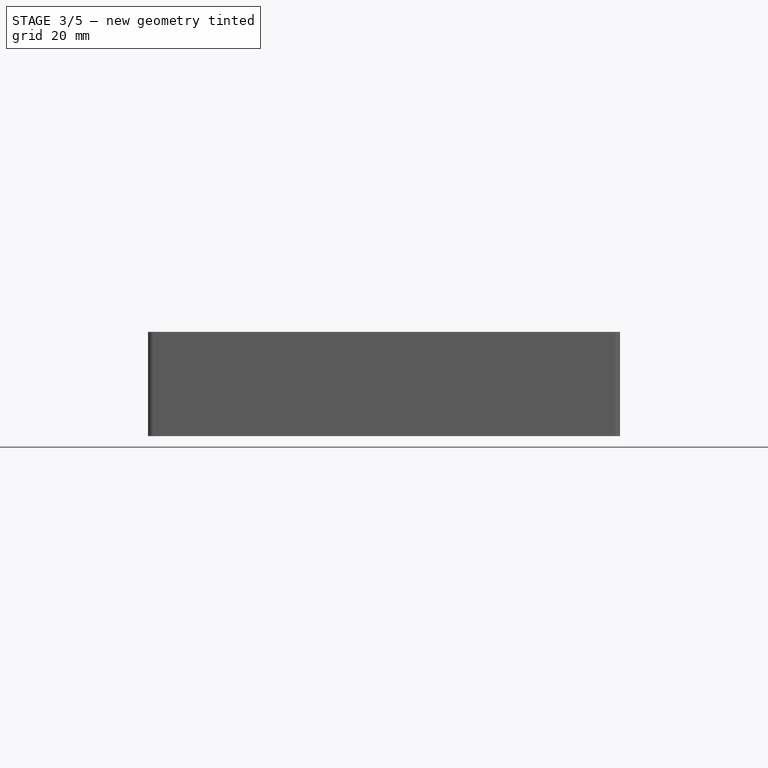
[diagram: stage 3 of 5 — front view after this stage's code; geometry added in this stage tinted green]
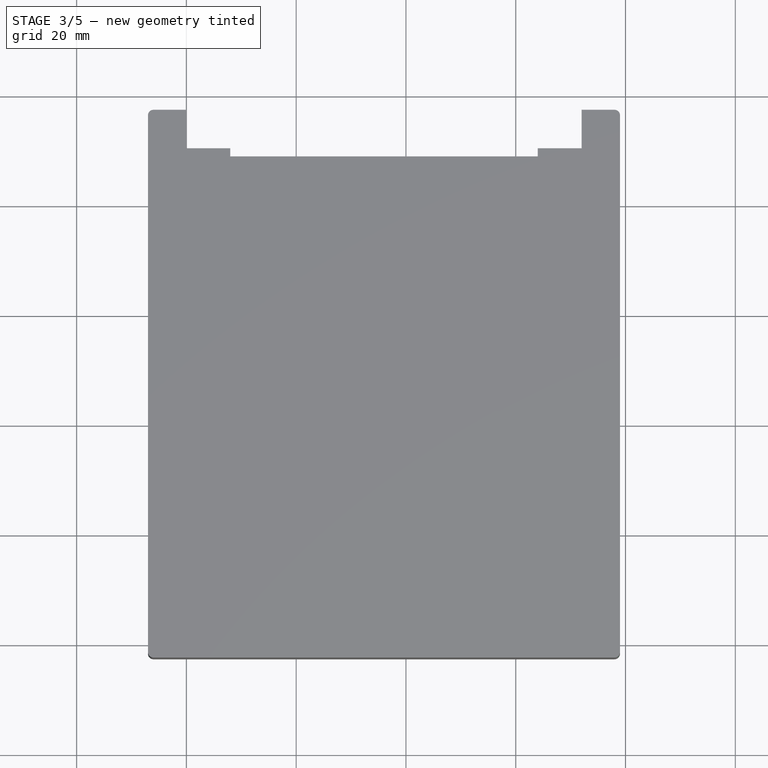
[diagram: stage 3 of 5 — top view after this stage's code; geometry added in this stage tinted green]
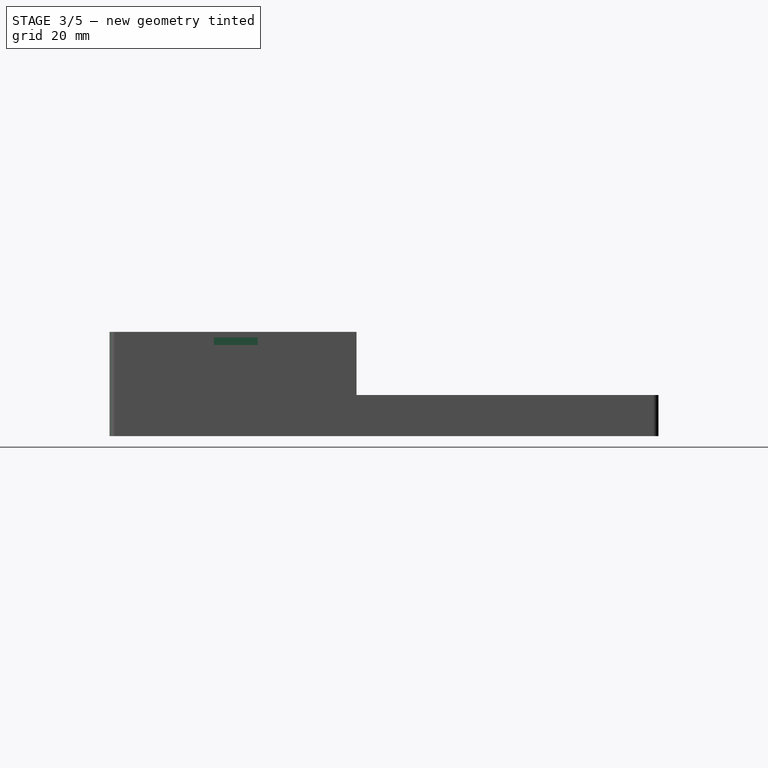
[diagram: stage 3 of 5 — right view after this stage's code; geometry added in this stage tinted green]
FEATURE [PartDesign::Fillet] Fillet
  Base = -> Pocket006 [Edge53,Edge72,Edge27,Edge74]
  BaseFeature = -> Pocket006
  Radius = 1
  SupportTransform = false
  Suppressed = false
  UseAllEdges = false
FEATURE [PartDesign::LinearPattern] LinearPattern002  label="FrontMountingPillar001"
  BaseFeature = -> Fillet
  Direction = -> Sketch032 [V_Axis]
  Length = 42.8
  Mode = 0
  Occurrences = 2
  Offset = 42.8
  Originals = -> [Pad027]
  Suppressed = false
  expr: Length = <<Parameters>>.BoardH - <<Parameters>>.ESP32LeftSpace * 2 - <<Parameters>>.ESP32Width - <<Parameters>>.BoardThickness * 2 - Spreadsheet.FrontPillarFrontSpace
FEATURE [PartDesign::LinearPattern] LinearPattern003  label="FrontMountingHole001"
  BaseFeature = -> LinearPattern002
  Direction = -> Sketch033 [V_Axis]
  Length = 42.8
  Mode = 0
  Occurrences = 2
  Offset = 42.8
  Originals = -> [Pocket006]
  Suppressed = false
  expr: Length = <<Parameters>>.BoardH - <<Parameters>>.ESP32LeftSpace * 2 - <<Parameters>>.ESP32Width - <<Parameters>>.BoardThickness * 2 - Spreadsheet.FrontPillarFrontSpace
FEATURE [Sketcher::SketchObject] Sketch034
  AttachmentSupport = -> [LinearPattern003]
  ExternalGeometry = -> [LinearPattern003]
  FullyConstrained = true
  MapMode = 5
  Placement = pos=(0,0,19.6) rot=(1,0,0;3.14159rad)
  expr: Constraints[0] = <<Parameters>>.SpaceToTopBottom + <<Parameters>>.ESP32LeftSpace + <<Parameters>>.ESP32Width + Spreadsheet.CenterPillarBackSpace
  expr: Constraints[2] = Spreadsheet.FrontPillarSideSpace
  expr: Constraints[3] = Spreadsheet.FrontPillarSideSpace
  expr: Constraints[4] = <<Parameters>>.MountingHoleDiameter + 2
  expr: Constraints[5] = <<Parameters>>.MountingHoleDiameter + 2
  sketch-geometry (2):
    g0: Circle CenterX=-3 CenterY=-38 CenterZ=0 NormalX=0 NormalY=0 NormalZ=1 AngleXU=0 Radius=2.6
    g1: Circle CenterX=75 CenterY=-38 CenterZ=0 NormalX=0 NormalY=0 NormalZ=1 AngleXU=0 Radius=2.6
  constraints (6):
    c: DistanceY(g0,g-3) = 39
    c: Horizontal(g0,g1)
    c: DistanceX(g-3,g0) = 2.5
    c: DistanceX(g1,g-3) = 2.5
    c: Diameter(g0) = 5.2
    c: Diameter(g1) = 5.2
FEATURE [PartDesign::Pad] Pad028  label="CenterPillarMountingPillar"
  BaseFeature = -> LinearPattern003
  Direction = (0,0,-1)
  Length = 18
  Length2 = 10
  Profile = -> Sketch034
  ReferenceAxis = -> Sketch034 [N_Axis]
  Suppressed = false
  Type = 0
  expr: Length = <<Parameters>>.HigherPartHeight
FEATURE [PartDesign::Body] Body001  label="BottomCase"
  Group = -> [Sketch002,Pad001,Sketch004,Pad003,Sketch007,Pad006,Sketch008,Pad007,Sketch009,Pocket001,Sketch010,Pocket002,Sketch012,Pad009,Sketch019,Pad015,Sketch020,Pad016,LinearPattern,Sketch021,Pad017,Sketch022,Pad023,Sketch029,Pad024,Sketch031,Pad026,Fillet001,LinearPattern001,Sketch036,Pad029]
  Origin = -> Origin001
  Tip = -> Pad029
FEATURE [Sketcher::SketchObject] Sketch037
  AttachmentSupport = -> [Pad028]
  ExternalGeometry = -> [Pad028]
  FullyConstrained = true
  MapMode = 5
  Placement = pos=(0,0,1.6) rot=(1,0,0;3.14159rad)
  expr: Constraints[2] = <<Parameters>>.MountingHoleDiameter
  expr: Constraints[3] = <<Parameters>>.MountingHoleDiameter
  sketch-geometry (2):
    g0: Circle CenterX=-3 CenterY=-38 CenterZ=0 NormalX=0 NormalY=0 NormalZ=1 AngleXU=0 Radius=1.6
    g1: Circle CenterX=75 CenterY=-38 CenterZ=0 NormalX=0 NormalY=0 NormalZ=1 AngleXU=0 Radius=1.6
  constraints (4):
    c: Coincident(g0,g-3)
    c: Coincident(g1,g-4)
    c: Diameter(g0) = 3.2
    c: Diameter(g1) = 3.2
FEATURE [PartDesign::Pocket] Pocket007  label="CenterPillarMountingHole"
  BaseFeature = -> Pad028
  Direction = (0,0,1)
  Length = 18
  Length2 = 5
  Profile = -> Sketch037
  Suppressed = false
  Type = 0
  expr: Length = <<Parameters>>.HigherPartHeight
FEATURE [Sketcher::SketchObject] Sketch038
  AttachmentSupport = -> [Pocket007]
  ExternalGeometry = -> [Pocket007]
  FullyConstrained = true
  MapMode = 5
  Placement = pos=(0,0,19.6) rot=(1,0,0;3.14159rad)
  sketch-geometry (4):
    g0: LineSegment StartX=77.5 StartY=-16.5 StartZ=0 EndX=79 EndY=-16.5 EndZ=0
    g1: LineSegment StartX=79 StartY=-16.5 StartZ=0 EndX=79 EndY=-24.5 EndZ=0
    g2: LineSegment StartX=79 StartY=-24.5 StartZ=0 EndX=77.5 EndY=-24.5 EndZ=0
    g3: LineSegment StartX=77.5 StartY=-24.5 StartZ=0 EndX=77.5 EndY=-16.5 EndZ=0
  constraints (10):
    c: Coincident(g0,g1)
    c: Coincident(g1,g2)
    c: Coincident(g2,g3)
    c: Coincident(g3,g0)
    c: Horizontal(g0)
    c: Horizontal(g2)
    c: Vertical(g1)
    c: Vertical(g3)
    c: Coincident(g0,g-3)
    c: Coincident(g1,g-4)
FEATURE [PartDesign::Pad] Pad030  label="USBJackTop"
  AlongSketchNormal = false
  BaseFeature = -> Pocket007
  Direction = (0,0,-1)
  Length = 1.4
  Length2 = 100
  Profile = -> Sketch038
  Suppressed = false
  Type = 0
  expr: Length = <<Parameters>>.HigherPartHeight - <<Parameters>>.ESP32BottomSpace - <<Parameters>>.BoardThickness - <<Parameters>>.USBJackHeight
FEATURE [PartDesign::Plane] DatumPlane  label="SplitFrontAndBack"
  AttachmentSupport = -> [Pad030]
  Length = 118.422
  MapMode = 5
  Placement = pos=(0,42.5,0) rot=(0,0.707107,0.707107;3.14159rad)
  ResizeMode = 0
  Width = 64.4222
FEATURE [PartDesign::Body] Body002  label="TopCase"
  Group = -> [ReferencePad011,Sketch015,Pad012,ReferencePad011001,Sketch016,Pad013,Sketch017,Pad014,Sketch018,Pocket003,Sketch024,Pad019,Sketch025,Pocket005,Sketch026,Pad020,Sketch030,Pad025,Sketch032,Pad027,Sketch033,Pocket006,Fillet,LinearPattern002,LinearPattern003,Sketch034,Pad028,Sketch037,Pocket007,Sketch038,Pad030,DatumPlane]
  Origin = -> Origin002
  Tip = -> Pad030
FEATURE [Part::FeaturePython] Slice  # WARN: FeaturePython — macro-defined, semantics opaque (R4)
  Base = -> Body002
  Mode = 1
  Tolerance = 0
  Tools = -> [DatumPlane]
FEATURE [Part::FeaturePython] Slice_child0  label="TopFrontCase"  # WARN: FeaturePython — macro-defined, semantics opaque (R4)
  Base = -> Slice
  FilterType = 1
  Invert = false
  OverrideMaxVal = 0
  WindowFrom = 80
  WindowTo = 100
  items = 0
FEATURE [Part::FeaturePython] Slice_child1  label="TopBackCase"  # WARN: FeaturePython — macro-defined, semantics opaque (R4)
  Base = -> Slice
  FilterType = 1
  Invert = false
  OverrideMaxVal = 0
  WindowFrom = 80
  WindowTo = 100
  items = 1
FEATURE [App::DocumentObjectGroup] GrExplode_Slice  label="Exploded Slice"
  Group = -> [Slice_child0,Slice_child1]
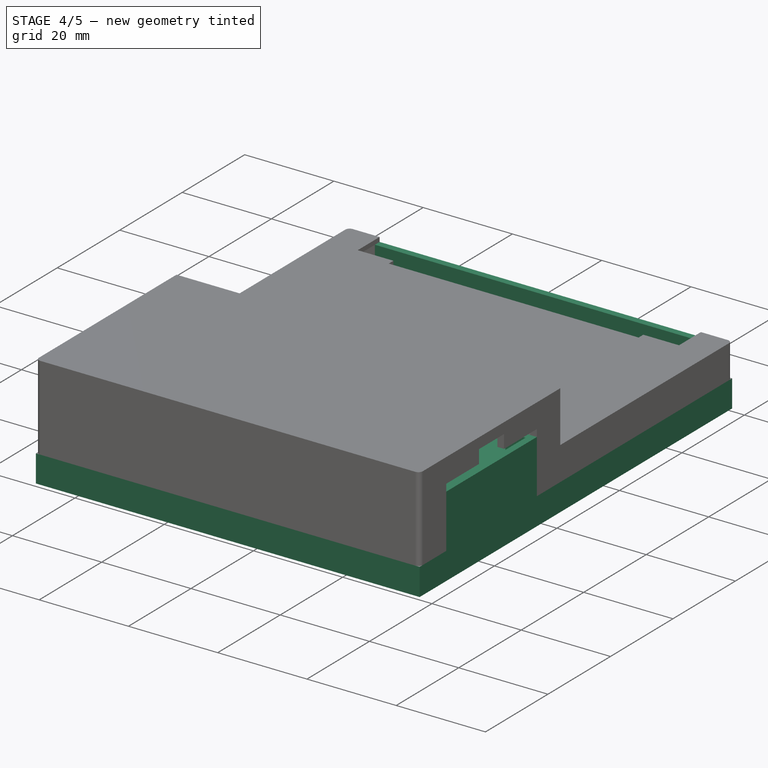
[diagram: stage 4 of 5 — iso view after this stage's code; geometry added in this stage tinted green]
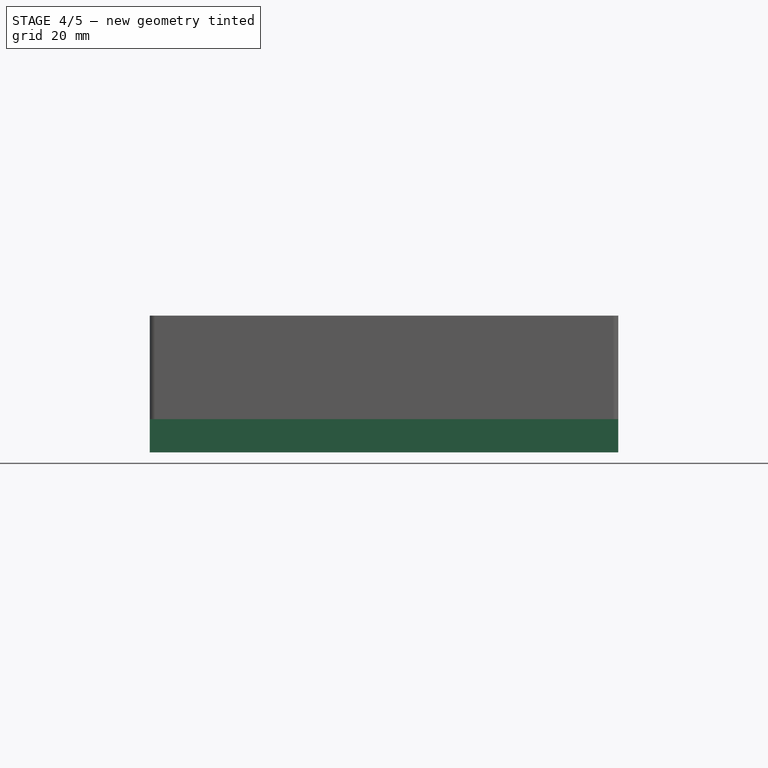
[diagram: stage 4 of 5 — front view after this stage's code; geometry added in this stage tinted green]
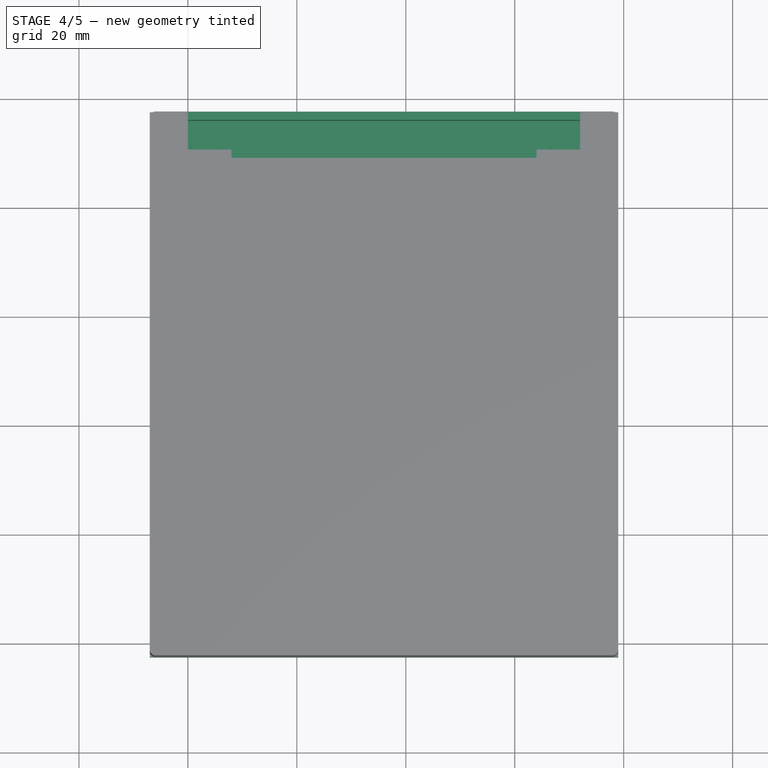
[diagram: stage 4 of 5 — top view after this stage's code; geometry added in this stage tinted green]
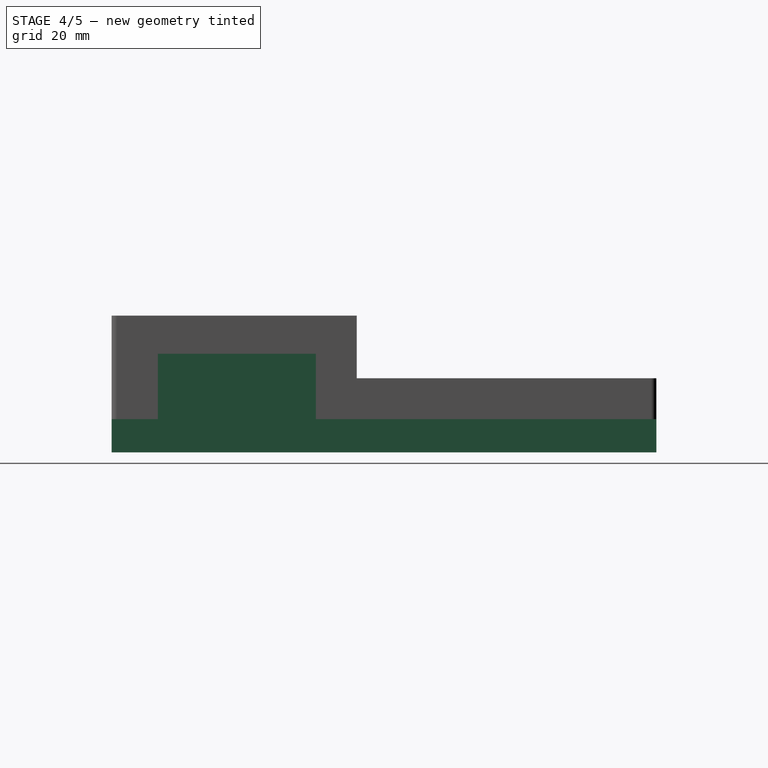
[diagram: stage 4 of 5 — right view after this stage's code; geometry added in this stage tinted green]
FEATURE [Spreadsheet::Sheet] Spreadsheet  label="Parameters"
  cells = A1='BoardW; B1(BoardW)=72; C1='ESP32LeftSpace; D1(ESP32LeftSpace)=6; A2='BoardH; B2(BoardH)=95; C2='ESP32Width; D2(ESP32Width)=29; A3='BoardThickness; B3(BoardThickness)=1.6; C3='ESP32Height; D3(ESP32Height)=52; A4='MountingHoleDiameter; B4(MountingHoleDiameter)=3.2; C4='ESP32BottomSpace; D4(ESP32BottomSpace)=12; A5='MountingHoleDistance; B5(MountingHoleDistance)=3; C5='USBJackWidth; D5(USBJackWidth)=8; A6='CaseThickness; B6(CaseThickness)=1.5; C6='USBJackHeight; D6(USBJackHeight)=3; A7='SpaceToBottomCase; B7(SpaceToBottomCase)=3; C7='HigherPartHeight; D7(HigherPartHeight)=18; A8='BottomCasePillar; B8(BottomCasePillar)=10; C8='LowerPartHeight; D8(LowerPartHeight)=6.5; A9='SpaceToSide; B9(SpaceToSide)=7; C9='ScreenFrontSpace; D9(ScreenFrontSpace)=4.5; A10='SpaceToTopBottom; B10(SpaceToTopBottom)=1; C10='ScreenPinThickness; D10(ScreenPinThickness)=1.5; A11='TopCasePillar; B11(TopCasePillar)=13; C11='ScreenPinSideSpace; D11(ScreenPinSideSpace)=8; A12='PillarTolerance; B12(PillarTolerance)=0.46; A13='FrontPillar; B13(FrontPillar)=10; A14='FrontPillarFrontSpace; B14(FrontPillarFrontSpace)=8; A15='FrontPillarSideSpace; B15(FrontPillarSideSpace)=2.5; A16='CenterPillarBackSpace; B16(CenterPillarBackSpace)=3
FEATURE [Sketcher::SketchObject] Sketch002
  AttachmentSupport = -> [YZ_Plane001]
  FullyConstrained = true
  MapMode = 5
  Placement = pos=(0,0,0) rot=(0.57735,0.57735,0.57735;2.0944rad)
  expr: Constraints[10] = <<Parameters>>.CaseThickness + 1
  expr: Constraints[11] = <<Parameters>>.BoardH + <<Parameters>>.CaseThickness * 2 + <<Parameters>>.SpaceToTopBottom * 2
  expr: Constraints[8] = <<Parameters>>.CaseThickness
  expr: Constraints[9] = <<Parameters>>.SpaceToBottomCase
  sketch-geometry (4):
    g0: LineSegment StartX=-2.5 StartY=-3 StartZ=0 EndX=97.5 EndY=-3 EndZ=0
    g1: LineSegment StartX=97.5 StartY=-3 StartZ=0 EndX=97.5 EndY=-4.5 EndZ=0
    g2: LineSegment StartX=97.5 StartY=-4.5 StartZ=0 EndX=-2.5 EndY=-4.5 EndZ=0
    g3: LineSegment StartX=-2.5 StartY=-4.5 StartZ=0 EndX=-2.5 EndY=-3 EndZ=0
  constraints (12):
    c: Coincident(g0,g1)
    c: Coincident(g1,g2)
    c: Coincident(g2,g3)
    c: Coincident(g3,g0)
    c: Horizontal(g0)
    c: Horizontal(g2)
    c: Vertical(g1)
    c: Vertical(g3)
    c: DistanceY(g3,g3) = 1.5
    c: DistanceY(g0,g-1) = 3
    c: DistanceX(g0,g-1) = 2.5
    c: DistanceX(g0,g0) = 100
FEATURE [PartDesign::Pad] Pad001  label="Body"
  Direction = (1,0,0)
  Length = 79
  Length2 = 7
  Placement = pos=(0,0,0) rot=(0.57735,0.57735,0.57735;2.0944rad)
  Profile = -> Sketch002
  ReferenceAxis = -> Sketch002 [N_Axis]
  Suppressed = false
  Type = 4
  expr: Length = <<Parameters>>.BoardW + <<Parameters>>.SpaceToSide
  expr: Length2 = <<Parameters>>.SpaceToSide
FEATURE [Sketcher::SketchObject] Sketch004
  AttachmentSupport = -> [Pad001]
  FullyConstrained = true
  MapMode = 5
  Placement = pos=(3e-16,-1e-15,-3) rot=(0,0,-1;1.5708rad)
  expr: Constraints[0] = <<Parameters>>.MountingHoleDiameter + 2
  expr: Constraints[10] = <<Parameters>>.MountingHoleDiameter + 2
  expr: Constraints[11] = <<Parameters>>.MountingHoleDiameter + 2
  expr: Constraints[1] = <<Parameters>>.MountingHoleDistance
  expr: Constraints[2] = <<Parameters>>.MountingHoleDistance
  expr: Constraints[3] = <<Parameters>>.BoardH - <<Parameters>>.MountingHoleDistance * 2
  expr: Constraints[6] = <<Parameters>>.BoardW - <<Parameters>>.MountingHoleDistance * 2
  expr: Constraints[9] = <<Parameters>>.MountingHoleDiameter + 2
  sketch-geometry (4):
    g0: Circle CenterX=-3 CenterY=3 CenterZ=0 NormalX=0 NormalY=0 NormalZ=1 AngleXU=0 Radius=2.6
    g1: Circle CenterX=-3 CenterY=69 CenterZ=0 NormalX=0 NormalY=0 NormalZ=1 AngleXU=0 Radius=2.6
    g2: Circle CenterX=-92 CenterY=3 CenterZ=0 NormalX=0 NormalY=0 NormalZ=1 AngleXU=0 Radius=2.6
    g3: Circle CenterX=-92 CenterY=69 CenterZ=0 NormalX=0 NormalY=0 NormalZ=1 AngleXU=0 Radius=2.6
  constraints (12):
    c: Diameter(g0) = 5.2
    c: DistanceY(g-1,g0) = 3
    c: DistanceX(g0,g-1) = 3
    c: DistanceX(g2,g0) = 89
    c: Horizontal(g0,g2)
    c: Vertical(g1,g0)
    c: DistanceY(g0,g1) = 66
    c: Horizontal(g3,g1)
    c: Vertical(g2,g3)
    c: Diameter(g3) = 5.2
    c: Diameter(g2) = 5.2
    c: Diameter(g1) = 5.2
FEATURE [PartDesign::Pad] Pad003  label="BoardStand"
  BaseFeature = -> Pad001
  Direction = (0,0,1)
  Length = 3
  Length2 = 10
  Placement = pos=(0,0,0) rot=(0.57735,0.57735,0.57735;2.0944rad)
  Profile = -> Sketch004
  ReferenceAxis = -> Sketch004 [N_Axis]
  Suppressed = false
  Type = 0
  expr: Length = <<Parameters>>.SpaceToBottomCase
FEATURE [Sketcher::SketchObject] Sketch007
  AttachmentSupport = -> [Pad003]
  FullyConstrained = true
  MapMode = 5
  Placement = pos=(1.3e-15,-1.3e-15,-3) rot=(0,0,-1;1.5708rad)
  expr: Constraints[10] = <<Parameters>>.ESP32Width
  expr: Constraints[11] = <<Parameters>>.ESP32LeftSpace
  expr: Constraints[8] = <<Parameters>>.CaseThickness
  expr: Constraints[9] = <<Parameters>>.BoardW + <<Parameters>>.SpaceToSide
  sketch-geometry (4):
    g0: LineSegment StartX=-35 StartY=79 StartZ=0 EndX=-6 EndY=79 EndZ=0
    g1: LineSegment StartX=-6 StartY=79 StartZ=0 EndX=-6 EndY=77.5 EndZ=0
    g2: LineSegment StartX=-6 StartY=77.5 StartZ=0 EndX=-35 EndY=77.5 EndZ=0
    g3: LineSegment StartX=-35 StartY=77.5 StartZ=0 EndX=-35 EndY=79 EndZ=0
  constraints (12):
    c: Coincident(g0,g1)
    c: Coincident(g1,g2)
    c: Coincident(g2,g3)
    c: Coincident(g3,g0)
    c: Horizontal(g0)
    c: Horizontal(g2)
    c: Vertical(g1)
    c: Vertical(g3)
    c: DistanceY(g1,g1) = 1.5
    c: DistanceY(g-1,g0) = 79
    c: DistanceX(g0,g0) = 29
    c: DistanceX(g0,g-1) = 6
FEATURE [PartDesign::Pad] Pad006  label="ESPSupportWall+"
  BaseFeature = -> Pad003
  Direction = (0,0,1)
  Length = 16.6
  Length2 = 10
  Placement = pos=(0,0,0) rot=(0.57735,0.57735,0.57735;2.0944rad)
  Profile = -> Sketch007
  ReferenceAxis = -> Sketch007 [N_Axis]
  Suppressed = false
  Type = 0
  expr: Length = <<Parameters>>.SpaceToBottomCase + <<Parameters>>.BoardThickness + <<Parameters>>.ESP32BottomSpace
FEATURE [Sketcher::SketchObject] Sketch008
  AttachmentSupport = -> [Pad006]
  FullyConstrained = true
  MapMode = 5
  Placement = pos=(77.5,1.72e-14,2.58e-14) rot=(0.57735,0.57735,-0.57735;4.18879rad)
  expr: Constraints[10] = <<Parameters>>.ESP32LeftSpace
  expr: Constraints[11] = -<<Parameters>>.SpaceToBottomCase
  expr: Constraints[8] = <<Parameters>>.ESP32Width
  expr: Constraints[9] = <<Parameters>>.ESP32BottomSpace + <<Parameters>>.BoardThickness + <<Parameters>>.SpaceToBottomCase
  sketch-geometry (4):
    g0: LineSegment StartX=6 StartY=3 StartZ=0 EndX=35 EndY=3 EndZ=0
    g1: LineSegment StartX=35 StartY=3 StartZ=0 EndX=35 EndY=-13.6 EndZ=0
    g2: LineSegment StartX=35 StartY=-13.6 StartZ=0 EndX=6 EndY=-13.6 EndZ=0
    g3: LineSegment StartX=6 StartY=-13.6 StartZ=0 EndX=6 EndY=3 EndZ=0
  constraints (12):
    c: Coincident(g0,g1)
    c: Coincident(g1,g2)
    c: Coincident(g2,g3)
    c: Coincident(g3,g0)
    c: Horizontal(g0)
    c: Horizontal(g2)
    c: Vertical(g1)
    c: Vertical(g3)
    c: DistanceX(g2,g2) = 29
    c: DistanceY(g3,g3) = 16.6
    c: DistanceX(g-1,g0) = 6
    c: DistanceY(g0,g-1) = -3
FEATURE [PartDesign::Pad] Pad007  label="ESPSupportWall+2"
  BaseFeature = -> Pad006
  Direction = (-1,0,0)
  Length = 4.5
  Length2 = 10
  Placement = pos=(0,0,0) rot=(0.57735,0.57735,0.57735;2.0944rad)
  Profile = -> Sketch008
  ReferenceAxis = -> Sketch008 [N_Axis]
  Suppressed = false
  Type = 0
  expr: Length = <<Parameters>>.SpaceToSide - <<Parameters>>.CaseThickness - 1
FEATURE [Sketcher::SketchObject] Sketch009
  AttachmentSupport = -> [Pad006]
  FullyConstrained = true
  MapMode = 5
  Placement = pos=(77.5,1.72e-14,2.58e-14) rot=(0.57735,0.57735,-0.57735;4.18879rad)
  expr: Constraints[10] = <<Parameters>>.ESP32LeftSpace + <<Parameters>>.CaseThickness
  expr: Constraints[11] = -<<Parameters>>.SpaceToBottomCase
  expr: Constraints[8] = <<Parameters>>.ESP32Width - 2 * <<Parameters>>.CaseThickness
  expr: Constraints[9] = <<Parameters>>.ESP32BottomSpace + <<Parameters>>.BoardThickness + <<Parameters>>.SpaceToBottomCase
  sketch-geometry (4):
    g0: LineSegment StartX=7.5 StartY=3 StartZ=0 EndX=33.5 EndY=3 EndZ=0
    g1: LineSegment StartX=33.5 StartY=3 StartZ=0 EndX=33.5 EndY=-13.6 EndZ=0
    g2: LineSegment StartX=33.5 StartY=-13.6 StartZ=0 EndX=7.5 EndY=-13.6 EndZ=0
    g3: LineSegment StartX=7.5 StartY=-13.6 StartZ=0 EndX=7.5 EndY=3 EndZ=0
  constraints (12):
    c: Coincident(g0,g1)
    c: Coincident(g1,g2)
    c: Coincident(g2,g3)
    c: Coincident(g3,g0)
    c: Horizontal(g0)
    c: Horizontal(g2)
    c: Vertical(g1)
    c: Vertical(g3)
    c: DistanceX(g2,g2) = 26
    c: DistanceY(g3,g3) = 16.6
    c: DistanceX(g-1,g0) = 7.5
    c: DistanceY(g0,g-1) = -3
FEATURE [PartDesign::Pocket] Pocket001  label="ESPSupportWall-"
  BaseFeature = -> Pad007
  Direction = (1,0,0)
  Length = 10
  Length2 = 5
  Placement = pos=(0,0,0) rot=(0.57735,0.57735,0.57735;2.0944rad)
  Profile = -> Sketch009
  Reversed = true
  Suppressed = false
  Type = 0
  expr: Length = 10
FEATURE [Sketcher::SketchObject] Sketch010
  AttachmentSupport = -> [Pocket001]
  FullyConstrained = true
  MapMode = 5
  Placement = pos=(4.3e-15,-2.3e-15,-3) rot=(0,0,-1;1.5708rad)
  expr: Constraints[10] = <<Parameters>>.BoardW - 10
  expr: Constraints[11] = <<Parameters>>.BoardH - 10
  sketch-geometry (4):
    g0: LineSegment StartX=-90 StartY=67 StartZ=0 EndX=-5 EndY=67 EndZ=0
    g1: LineSegment StartX=-5 StartY=67 StartZ=0 EndX=-5 EndY=5 EndZ=0
    g2: LineSegment StartX=-5 StartY=5 StartZ=0 EndX=-90 EndY=5 EndZ=0
    g3: LineSegment StartX=-90 StartY=5 StartZ=0 EndX=-90 EndY=67 EndZ=0
  constraints (12):
    c: Coincident(g0,g1)
    c: Coincident(g1,g2)
    c: Coincident(g2,g3)
    c: Coincident(g3,g0)
    c: Horizontal(g0)
    c: Horizontal(g2)
    c: Vertical(g1)
    c: Vertical(g3)
    c: DistanceY(g-1,g1) = 5
    c: DistanceX(g1,g-1) = 5
    c: DistanceY(g1,g1) = 62
    c: DistanceX(g0,g0) = 85
FEATURE [PartDesign::Pocket] Pocket002  label="ReduceWeight"
  BaseFeature = -> Pocket001
  Direction = (1.4e-15,0,-1)
  Length = 1
  Length2 = 5
  Placement = pos=(0,0,0) rot=(0.57735,0.57735,0.57735;2.0944rad)
  Profile = -> Sketch010
  Suppressed = false
  Type = 0
FEATURE [Sketcher::SketchObject] Sketch012
  AttachmentSupport = -> [Pocket002]
  ExternalGeometry = -> [Pocket002]
  FullyConstrained = true
  MapMode = 5
  Placement = pos=(5.3e-15,-2.7e-15,-3) rot=(0,0,-1;1.5708rad)
  expr: Constraints[14] = <<Parameters>>.CaseThickness
  expr: Constraints[1] = <<Parameters>>.CaseThickness
  expr: Constraints[3] = <<Parameters>>.CaseThickness
  expr: Constraints[4] = <<Parameters>>.CaseThickness
  expr: Constraints[8] = <<Parameters>>.CaseThickness
  expr: Constraints[9] = <<Parameters>>.CaseThickness
  sketch-geometry (12):
    g0: LineSegment StartX=-35 StartY=79 StartZ=0 EndX=-35 EndY=77.5 EndZ=0
    g1: LineSegment StartX=-35 StartY=77.5 StartZ=0 EndX=-96 EndY=77.5 EndZ=0
    g2: LineSegment StartX=-96 StartY=77.5 StartZ=0 EndX=-96 EndY=-5.5 EndZ=0
    g3: LineSegment StartX=-96 StartY=-5.5 StartZ=0 EndX=1 EndY=-5.5 EndZ=0
    g4: LineSegment StartX=-6 StartY=79 StartZ=0 EndX=-6 EndY=77.5 EndZ=0
    g5: LineSegment StartX=1 StartY=-5.5 StartZ=0 EndX=1 EndY=77.5 EndZ=0
    g6: LineSegment StartX=-6 StartY=77.5 StartZ=0 EndX=1 EndY=77.5 EndZ=0
    g7: LineSegment StartX=-6 StartY=79 StartZ=0 EndX=2.5 EndY=79 EndZ=0
    g8: LineSegment StartX=2.5 StartY=79 StartZ=0 EndX=2.5 EndY=-7 EndZ=0
    g9: LineSegment StartX=2.5 StartY=-7 StartZ=0 EndX=-97.5 EndY=-7 EndZ=0
    g10: LineSegment StartX=-97.5 StartY=-7 StartZ=0 EndX=-97.5 EndY=79 EndZ=0
    g11: LineSegment StartX=-97.5 StartY=79 StartZ=0 EndX=-35 EndY=79 EndZ=0
  constraints (30):
    c: Coincident(g0,g-3)
    c: DistanceY(g0,g0) = 1.5
    c: Coincident(g1,g0)
    c: DistanceY(g1,g-4) = 1.5
    c: DistanceX(g-4,g1) = 1.5
    c: Vertical(g0)
    c: Coincident(g2,g1)
    c: Coincident(g3,g2)
    c: DistanceY(g-5,g2) = 1.5
    c: DistanceX(g3,g-6) = 1.5
    c: Horizontal(g3)
    c: Vertical(g2)
    c: Coincident(g4,g-7)
    c: Vertical(g4)
    c: DistanceY(g4,g4) = 1.5
    c: Coincident(g5,g3)
    c: Vertical(g5)
    c: Coincident(g6,g4)
    c: Coincident(g6,g5)
    c: Horizontal(g6)
    c: Coincident(g7,g4)
    c: Coincident(g7,g-7)
    c: Coincident(g8,g7)
    c: Coincident(g8,g-6)
    c: Coincident(g9,g8)
    c: Coincident(g9,g-5)
    c: Coincident(g10,g9)
    c: Coincident(g10,g-4)
    c: Coincident(g11,g10)
    c: Coincident(g11,g0)
FEATURE [PartDesign::Pad] Pad009  label="Wall"
  BaseFeature = -> Pocket002
  Direction = (-1.8e-15,0,1)
  Length = 4.6
  Length2 = 10
  Placement = pos=(0,0,0) rot=(0.57735,0.57735,0.57735;2.0944rad)
  Profile = -> Sketch012
  ReferenceAxis = -> Sketch012 [N_Axis]
  Suppressed = false
  Type = 0
  expr: Length = <<Parameters>>.SpaceToBottomCase + <<Parameters>>.BoardThickness
FEATURE [Sketcher::SketchObject] Sketch019
  AttachmentSupport = -> [Pad009]
  FullyConstrained = true
  MapMode = 5
  Placement = pos=(-3.4e-15,2e-16,1.6) rot=(0,0,-1;1.5708rad)
  expr: Constraints[10] = <<Parameters>>.BoardH + <<Parameters>>.SpaceToTopBottom
  expr: Constraints[8] = <<Parameters>>.BoardW
  expr: Constraints[9] = <<Parameters>>.CaseThickness
  sketch-geometry (4):
    g0: LineSegment StartX=-97.5 StartY=72 StartZ=0 EndX=-96 EndY=72 EndZ=0
    g1: LineSegment StartX=-96 StartY=72 StartZ=0 EndX=-96 EndY=0 EndZ=0
    g2: LineSegment StartX=-96 StartY=0 StartZ=0 EndX=-97.5 EndY=0 EndZ=0
    g3: LineSegment StartX=-97.5 StartY=0 StartZ=0 EndX=-97.5 EndY=72 EndZ=0
  constraints (12):
    c: Coincident(g0,g1)
    c: Coincident(g1,g2)
    c: Coincident(g2,g3)
    c: Coincident(g3,g0)
    c: Horizontal(g0)
    c: Horizontal(g2)
    c: Vertical(g1)
    c: Vertical(g3)
    c: DistanceY(g3,g3) = 72
    c: DistanceX(g0,g0) = 1.5
    c: DistanceX(g1,g-1) = 96
    c: Horizontal(g1,g-1)
FEATURE [PartDesign::Pad] Pad015  label="ScreenPinProtectWall"
  BaseFeature = -> Pad009
  Direction = (-2.1e-15,0,1)
  Length = 6.5
  Length2 = 10
  Placement = pos=(0,0,0) rot=(0.57735,0.57735,0.57735;2.0944rad)
  Profile = -> Sketch019
  ReferenceAxis = -> Sketch019 [N_Axis]
  Suppressed = false
  Type = 0
  expr: Length = <<Parameters>>.LowerPartHeight
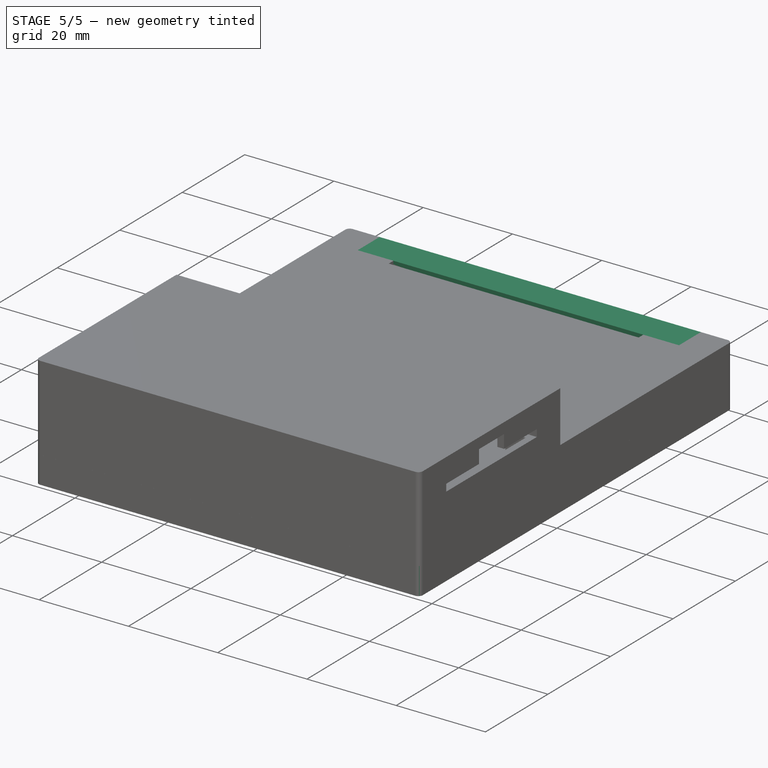
[diagram: stage 5 of 5 — iso view after this stage's code; geometry added in this stage tinted green]
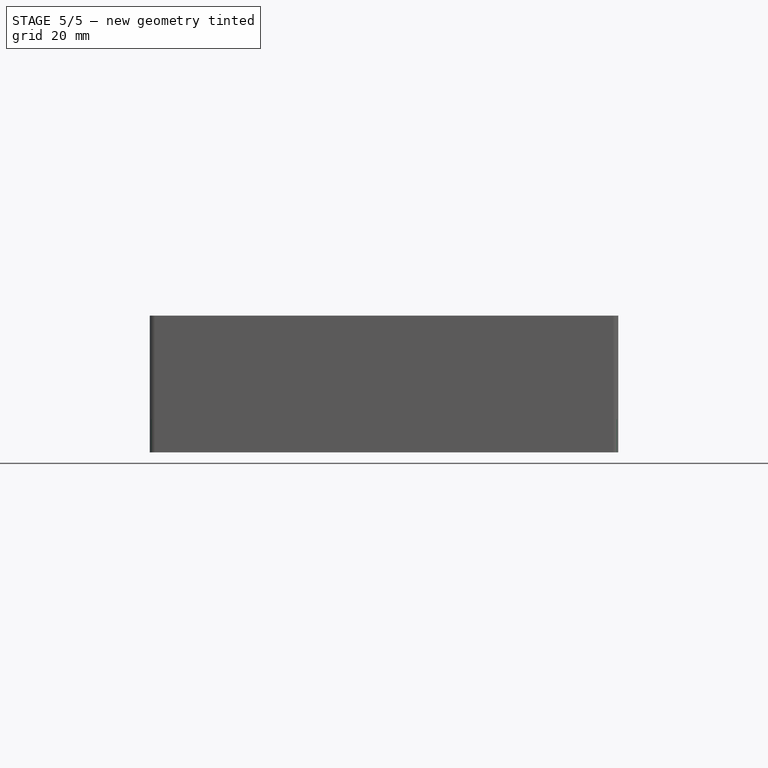
[diagram: stage 5 of 5 — front view after this stage's code; geometry added in this stage tinted green]
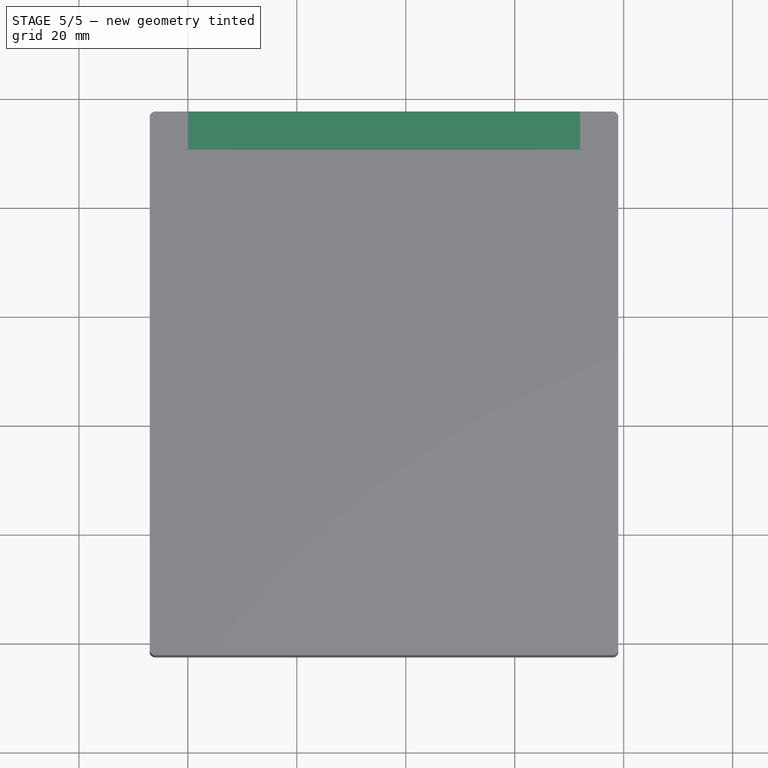
[diagram: stage 5 of 5 — top view after this stage's code; geometry added in this stage tinted green]
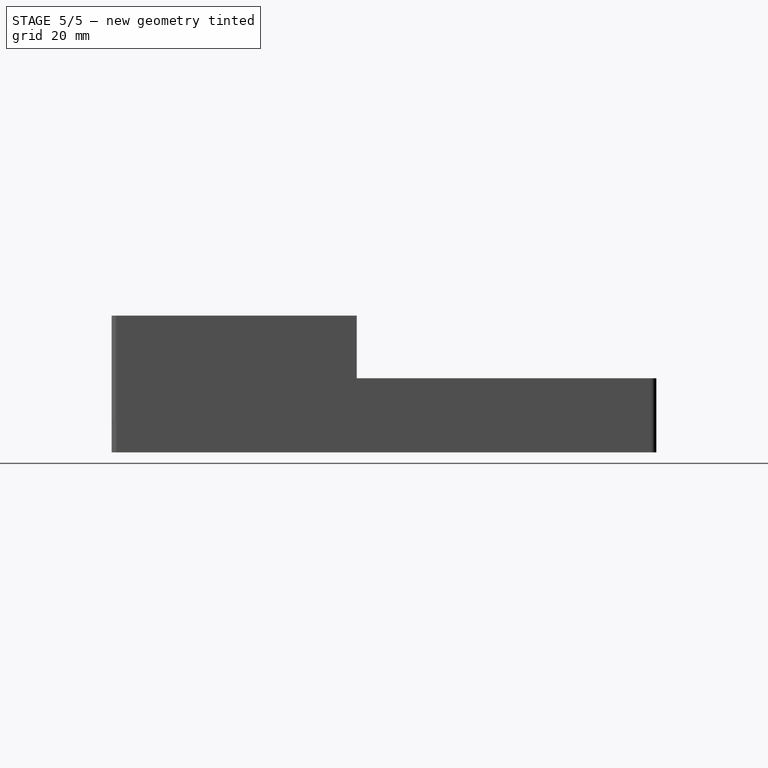
[diagram: stage 5 of 5 — right view after this stage's code; geometry added in this stage tinted green]
FEATURE [Sketcher::SketchObject] Sketch020
  AttachmentSupport = -> [Pad015]
  ExternalGeometry = -> [Pad015]
  FullyConstrained = true
  MapMode = 5
  Placement = pos=(72,1.6e-14,1.759e-13) rot=(0.57735,0.57735,0.57735;2.0944rad)
  expr: Constraints[5] = <<Parameters>>.ScreenFrontSpace + <<Parameters>>.SpaceToTopBottom
  sketch-geometry (3):
    g0: LineSegment StartX=96 StartY=8.1 StartZ=0 EndX=96 EndY=2.6 EndZ=0
    g1: LineSegment StartX=96 StartY=8.1 StartZ=0 EndX=90.5 EndY=8.1 EndZ=0
    g2: LineSegment StartX=90.5 StartY=8.1 StartZ=0 EndX=96 EndY=2.6 EndZ=0
  constraints (8):
    c: Coincident(g0,g-3)
    c: Coincident(g1,g0)
    c: Horizontal(g1)
    c: Coincident(g2,g1)
    c: Coincident(g2,g0)
    c: DistanceX(g1,g1) = 5.5
    c: Vertical(g0)
    c: DistanceY(g-3,g0) = 1
FEATURE [PartDesign::Pad] Pad016  label="SupportItem"
  BaseFeature = -> Pad015
  Direction = (1,1e-16,2.3e-15)
  Length = 1.5
  Length2 = 10
  Placement = pos=(0,0,0) rot=(0.57735,0.57735,0.57735;2.0944rad)
  Profile = -> Sketch020
  ReferenceAxis = -> Sketch020 [N_Axis]
  Reversed = true
  Suppressed = false
  Type = 0
  expr: Length = <<Parameters>>.CaseThickness
FEATURE [PartDesign::LinearPattern] LinearPattern  label="ScreenPinProtectSupport"
  BaseFeature = -> Pad016
  Direction = -> X_Axis001
  Length = 70.5
  Mode = 0
  Occurrences = 8
  Offset = 10.0714
  Originals = -> [Pad016]
  Placement = pos=(0,0,0) rot=(0.57735,0.57735,0.57735;2.0944rad)
  Reversed = true
  Suppressed = false
  expr: Length = <<Parameters>>.BoardW - <<Parameters>>.CaseThickness
FEATURE [Sketcher::SketchObject] Sketch021
  AttachmentSupport = -> [LinearPattern]
  FullyConstrained = true
  MapMode = 5
  Placement = pos=(-2.25e-14,1.8e-15,8.1) rot=(0,0,-1;1.5708rad)
  expr: Constraints[6] = <<Parameters>>.BoardW
  expr: Constraints[7] = <<Parameters>>.ScreenFrontSpace + <<Parameters>>.SpaceToTopBottom + <<Parameters>>.CaseThickness
  expr: Constraints[8] = <<Parameters>>.BoardH + <<Parameters>>.SpaceToTopBottom + <<Parameters>>.CaseThickness
  sketch-geometry (4):
    g0: LineSegment StartX=-97.5 StartY=0 StartZ=0 EndX=-90.5 EndY=0 EndZ=0
    g1: LineSegment StartX=-90.5 StartY=0 StartZ=0 EndX=-90.5 EndY=72 EndZ=0
    g2: LineSegment StartX=-97.5 StartY=72 StartZ=0 EndX=-97.5 EndY=0 EndZ=0
    g3: LineSegment StartX=-97.5 StartY=72 StartZ=0 EndX=-90.5 EndY=72 EndZ=0
  constraints (12):
    c: Coincident(g0,g1)
    c: Coincident(g2,g0)
    c: Horizontal(g0)
    c: Vertical(g1)
    c: Vertical(g2)
    c: Horizontal(g0,g-1)
    c: DistanceY(g2,g2) = 72
    c: DistanceX(g2,g1) = 7
    c: DistanceX(g0,g-1) = 97.5
    c: Coincident(g3,g2)
    c: Coincident(g3,g1)
    c: Horizontal(g3)
FEATURE [PartDesign::Pad] Pad017  label="ScreenPinProtectTop"
  BaseFeature = -> LinearPattern
  Direction = (-2.8e-15,0,1)
  Length = 1
  Length2 = 10
  Placement = pos=(0,0,0) rot=(0.57735,0.57735,0.57735;2.0944rad)
  Profile = -> Sketch021
  ReferenceAxis = -> Sketch021 [N_Axis]
  Suppressed = false
  Type = 0
  expr: Length = <<Parameters>>.CaseThickness - 0.5
FEATURE [PartDesign::Pad] Pad023  label="ShortPillar"
  BaseFeature = -> Pad017
  Direction = (-3e-15,0,1)
  Length = 2
  Length2 = 10
  Placement = pos=(0,0,0) rot=(0.57735,0.57735,0.57735;2.0944rad)
  Profile = -> Sketch022
  ReferenceAxis = -> Sketch022 [N_Axis]
  Suppressed = false
  Type = 0
  expr: Length = 2
FEATURE [Sketcher::SketchObject] Sketch029
  AttachmentSupport = -> [Pad023]
  ExternalGeometry = -> [Pad023]
  FullyConstrained = true
  MapMode = 5
  Placement = pos=(0,0,-1.88e-13) rot=(0,0,-1;1.5708rad)
  expr: Constraints[2] = <<Parameters>>.MountingHoleDiameter - <<Parameters>>.PillarTolerance
  expr: Constraints[3] = <<Parameters>>.MountingHoleDiameter - <<Parameters>>.PillarTolerance
  sketch-geometry (2):
    g0: Circle CenterX=-3 CenterY=69 CenterZ=0 NormalX=0 NormalY=0 NormalZ=1 AngleXU=0 Radius=1.37
    g1: Circle CenterX=-3 CenterY=3 CenterZ=0 NormalX=0 NormalY=0 NormalZ=1 AngleXU=0 Radius=1.37
  constraints (4):
    c: Coincident(g0,g-3)
    c: Coincident(g1,g-4)
    c: Diameter(g0) = 2.74
    c: Diameter(g1) = 2.74
FEATURE [PartDesign::Pad] Pad024  label="LongPillar"
  BaseFeature = -> Pad023
  Direction = (-3.3e-15,1.1e-15,1)
  Length = 10
  Length2 = 10
  Placement = pos=(0,0,0) rot=(0.57735,0.57735,0.57735;2.0944rad)
  Profile = -> Sketch029
  ReferenceAxis = -> Sketch029 [N_Axis]
  Suppressed = false
  Type = 0
  expr: Length = <<Parameters>>.BottomCasePillar
FEATURE [Sketcher::SketchObject] Sketch031
  AttachmentSupport = -> [Pad024]
  ExternalGeometry = -> [Pad024]
  FullyConstrained = true
  MapMode = 5
  Placement = pos=(1.13e-14,-4.7e-15,-3) rot=(0,0,-1;1.5708rad)
  expr: Constraints[0] = Spreadsheet.FrontPillarFrontSpace
  expr: Constraints[1] = Spreadsheet.FrontPillarSideSpace
  expr: Constraints[2] = <<Parameters>>.MountingHoleDiameter - <<Parameters>>.PillarTolerance
  expr: Constraints[3] = Spreadsheet.FrontPillarSideSpace
  expr: Constraints[4] = Spreadsheet.FrontPillarFrontSpace
  expr: Constraints[5] = <<Parameters>>.MountingHoleDiameter - <<Parameters>>.PillarTolerance
  sketch-geometry (2):
    g0: Circle CenterX=-88 CenterY=-3 CenterZ=0 NormalX=0 NormalY=0 NormalZ=1 AngleXU=0 Radius=1.37
    g1: Circle CenterX=-88 CenterY=75 CenterZ=0 NormalX=0 NormalY=0 NormalZ=1 AngleXU=0 Radius=1.37
  constraints (6):
    c: DistanceX(g-6,g0) = 8
    c: DistanceY(g-6,g0) = 2.5
    c: Diameter(g0) = 2.74
    c: DistanceY(g1,g-4) = 2.5
    c: DistanceX(g-4,g1) = 8
    c: Diameter(g1) = 2.74
FEATURE [PartDesign::Pad] Pad026  label="FrontPillar"
  BaseFeature = -> Pad024
  Direction = (-3.8e-15,1.6e-15,1)
  Length = 10
  Length2 = 10
  Placement = pos=(0,0,0) rot=(0.57735,0.57735,0.57735;2.0944rad)
  Profile = -> Sketch031
  ReferenceAxis = -> Sketch031 [N_Axis]
  Suppressed = false
  Type = 0
  expr: Length = Spreadsheet.FrontPillar
FEATURE [PartDesign::Fillet] Fillet001
  Base = -> Pad026 [Edge132,Edge130,Edge128,Edge126]
  BaseFeature = -> Pad026
  Placement = pos=(0,0,0) rot=(0.57735,0.57735,0.57735;2.0944rad)
  Radius = 1
  SupportTransform = false
  Suppressed = false
  UseAllEdges = false
FEATURE [PartDesign::LinearPattern] LinearPattern001  label="FrontPillar001"
  BaseFeature = -> Fillet001
  Direction = -> Sketch031 [H_Axis]
  Length = 42.8
  Mode = 0
  Occurrences = 2
  Offset = 42.8
  Originals = -> [Pad026]
  Placement = pos=(0,0,0) rot=(0.57735,0.57735,0.57735;2.0944rad)
  Suppressed = false
  expr: Length = <<Parameters>>.BoardH - <<Parameters>>.ESP32LeftSpace * 2 - <<Parameters>>.ESP32Width - <<Parameters>>.BoardThickness * 2 - Spreadsheet.FrontPillarFrontSpace
FEATURE [Sketcher::SketchObject] Sketch036
  AttachmentSupport = -> [LinearPattern001]
  ExternalGeometry = -> [LinearPattern001]
  FullyConstrained = true
  MapMode = 5
  Placement = pos=(1.23e-14,-5e-15,-3) rot=(0,0,-1;1.5708rad)
  expr: Constraints[0] = <<Parameters>>.SpaceToTopBottom + <<Parameters>>.ESP32LeftSpace + <<Parameters>>.ESP32Width + Spreadsheet.CenterPillarBackSpace
  expr: Constraints[1] = <<Parameters>>.FrontPillarSideSpace
  expr: Constraints[2] = <<Parameters>>.FrontPillarSideSpace
  expr: Constraints[4] = <<Parameters>>.MountingHoleDiameter - <<Parameters>>.PillarTolerance
  expr: Constraints[5] = <<Parameters>>.MountingHoleDiameter - <<Parameters>>.PillarTolerance
  sketch-geometry (2):
    g0: Circle CenterX=-38 CenterY=75 CenterZ=0 NormalX=0 NormalY=0 NormalZ=1 AngleXU=0 Radius=1.37
    g1: Circle CenterX=-38 CenterY=-3 CenterZ=0 NormalX=0 NormalY=0 NormalZ=1 AngleXU=0 Radius=1.37
  constraints (6):
    c: DistanceX(g0,g-3) = 39
    c: DistanceY(g0,g-3) = 2.5
    c: DistanceY(g-3,g1) = 2.5
    c: Vertical(g0,g1)
    c: Diameter(g0) = 2.74
    c: Diameter(g1) = 2.74
FEATURE [PartDesign::Pad] Pad029  label="CenterPillar"
  BaseFeature = -> LinearPattern001
  Direction = (-4.1e-15,1.7e-15,1)
  Length = 10
  Length2 = 10
  Placement = pos=(0,0,0) rot=(0.57735,0.57735,0.57735;2.0944rad)
  Profile = -> Sketch036
  ReferenceAxis = -> Sketch036 [N_Axis]
  Suppressed = false
  Type = 0
  expr: Length = <<Parameters>>.FrontPillar
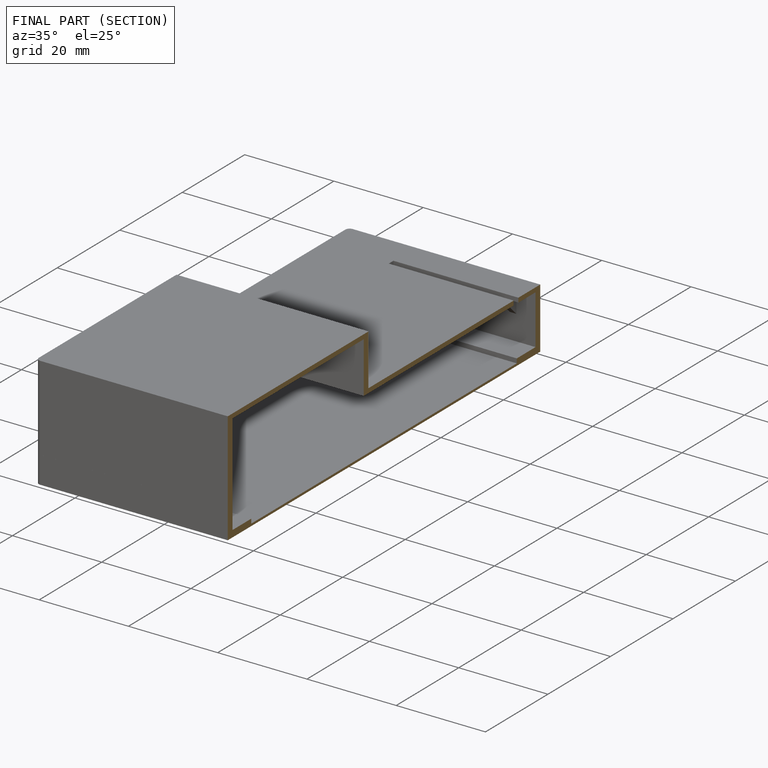
[diagram: finished part — half-section view (interior)]
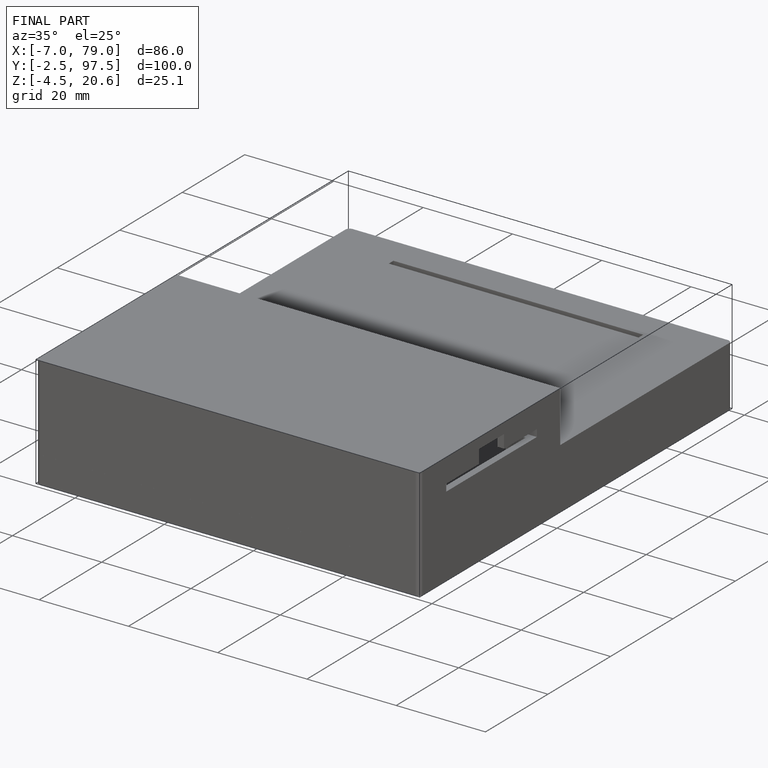
[diagram: finished part — iso view with bounding-box wireframe]
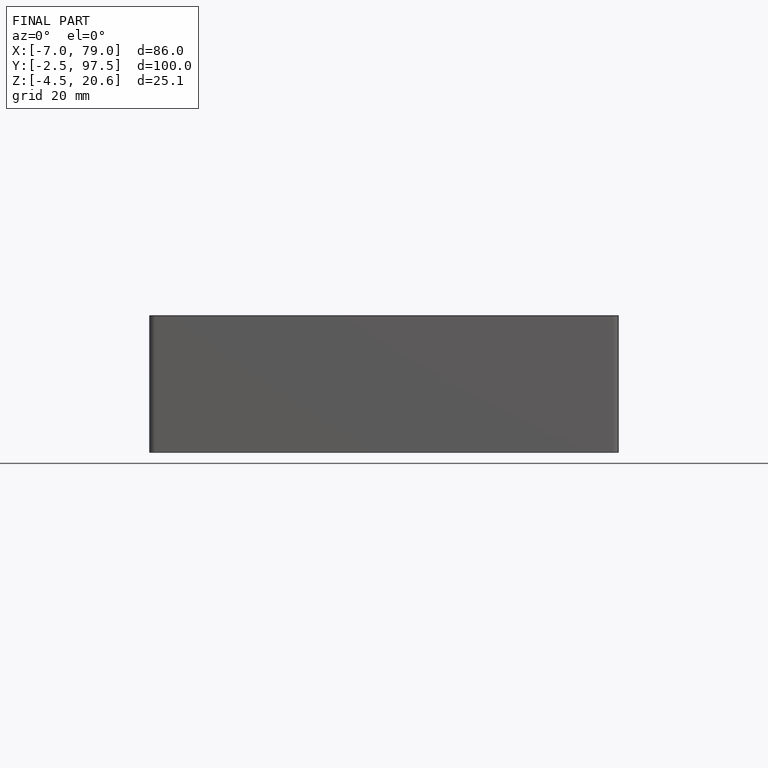
[diagram: finished part — front view with bounding-box wireframe]
